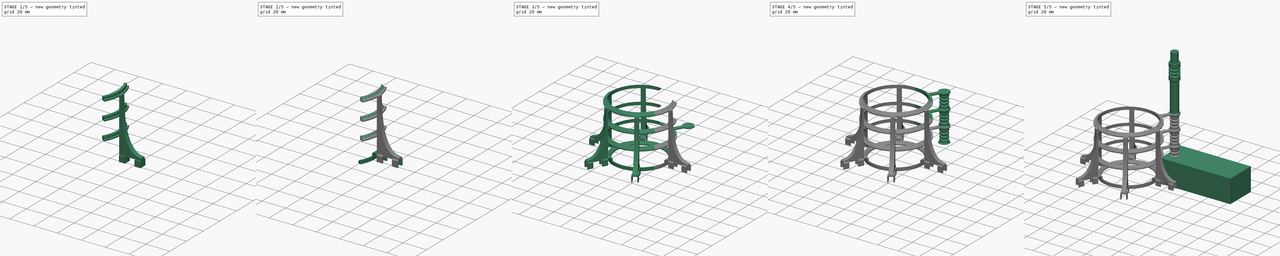
[diagram: build sequence overview — one tinted view per stage of 5, left to right]
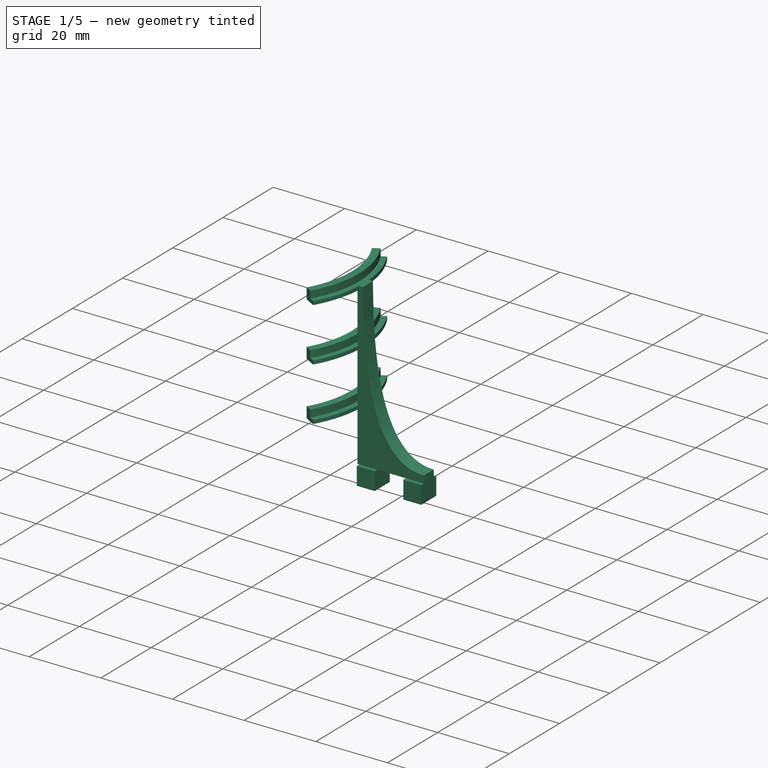
[diagram: stage 1 of 5 — iso view after this stage's code; geometry added in this stage tinted green]
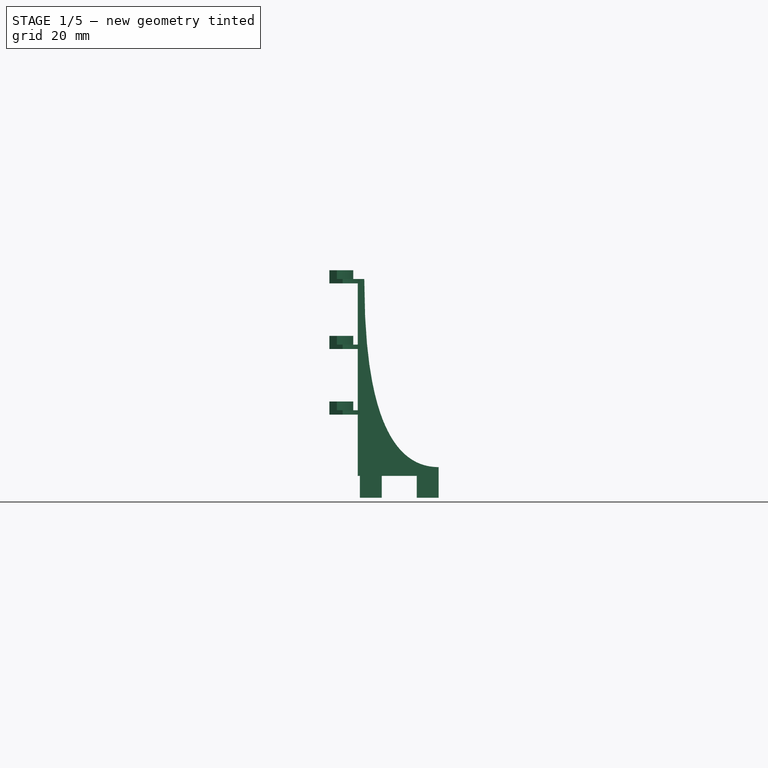
[diagram: stage 1 of 5 — front view after this stage's code; geometry added in this stage tinted green]
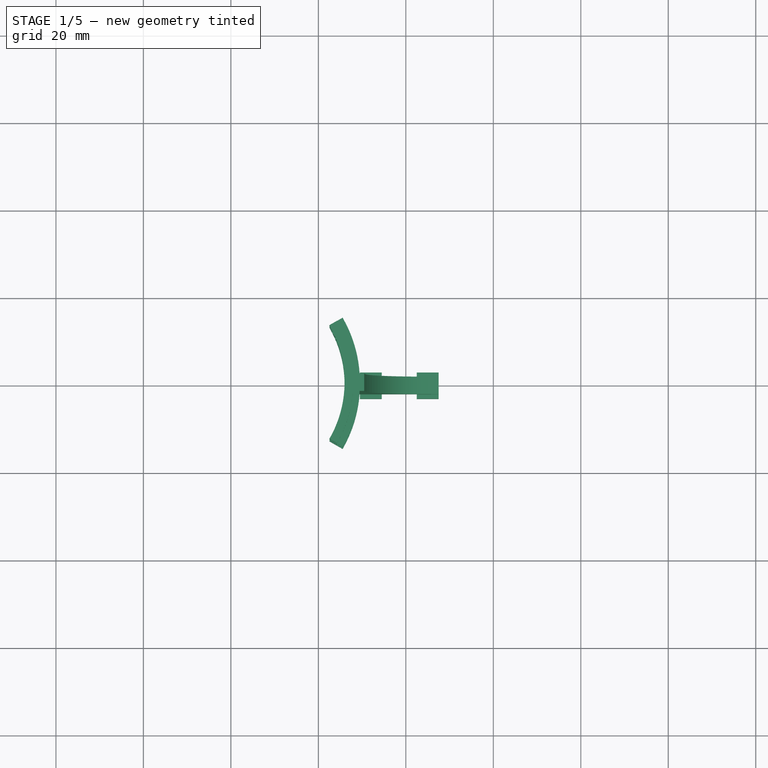
[diagram: stage 1 of 5 — top view after this stage's code; geometry added in this stage tinted green]
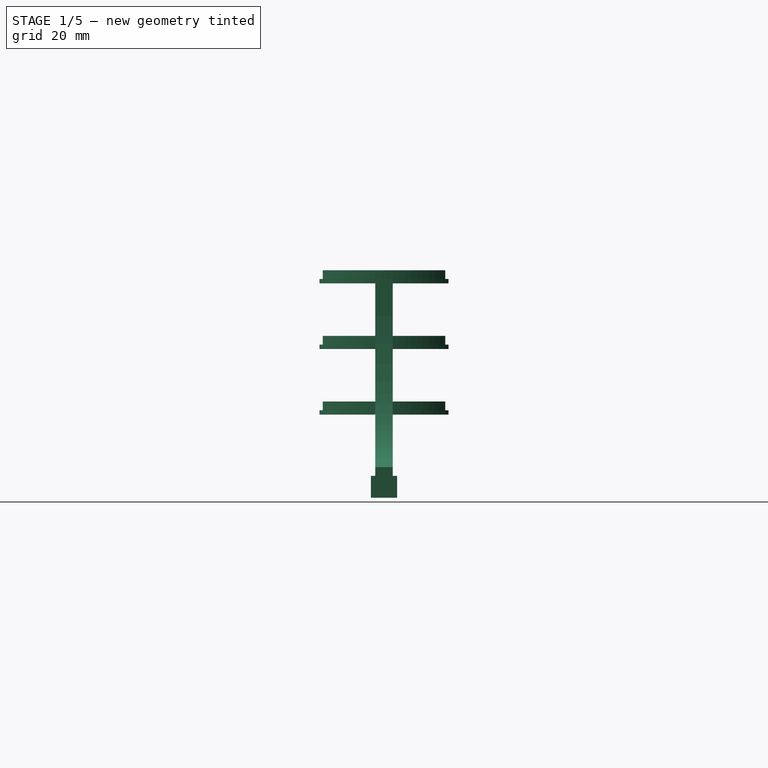
[diagram: stage 1 of 5 — right view after this stage's code; geometry added in this stage tinted green]
FCSTD DOCUMENT  (FreeCAD 0.20R29603 (Git))
Label: PegasusModifier2_Array
License: All rights reserved
LicenseURL: http://en.wikipedia.org/wiki/All_rights_reserved
objects: Sketcher::SketchObject×27, PartDesign::Pad×24, PartDesign::Chamfer×7, PartDesign::Fillet×5, PartDesign::Body×4, PartDesign::Revolution×2, PartDesign::Pocket×1, PartDesign::PolarPattern×1, PartDesign::Boolean×1, PartDesign::LinearPattern×1
note: 112 computed .brp shape members not serialized (recipe doc carries the construction recipe); baked Part::Feature solids carry a one-line shape summary decoded from their .brp

FEATURE [Sketcher::SketchObject] Sketch
  FullyConstrained = true
  MapMode = 5
  Placement = pos=(0,0,0) rot=(1,0,0;1.5708rad)
  Support = -> [XZ_Plane]
  sketch-geometry (10):
    g0: Circle CenterX=30.5 CenterY=45 CenterZ=0 NormalX=0 NormalY=0 NormalZ=1 AngleXU=0 Radius=1
    g1: Circle CenterX=30.5 CenterY=2 CenterZ=0 NormalX=0 NormalY=0 NormalZ=1 AngleXU=0 Radius=1
    g2: Circle CenterX=47.5 CenterY=2 CenterZ=0 NormalX=0 NormalY=0 NormalZ=1 AngleXU=0 Radius=1
    g3: BSplineCurve PolesCount=3 KnotsCount=2 Degree=2 IsPeriodic=0
    g4: GeomPoint X=30.5 Y=45 Z=0
    g5: GeomPoint X=47.5 Y=2 Z=0
    g6: LineSegment StartX=30.5 StartY=45 StartZ=0 EndX=29 EndY=45 EndZ=0
    g7: LineSegment StartX=29 StartY=45 StartZ=0 EndX=29 EndY=0 EndZ=0
    g8: LineSegment StartX=29 StartY=0 StartZ=0 EndX=47.5 EndY=0 EndZ=0
    g9: LineSegment StartX=47.5 StartY=0 StartZ=0 EndX=47.5 EndY=2 EndZ=0
  constraints (25):
    c: Weight(g0) = 1
    c: Equal(g0,g1)
    c: Equal(g0,g2)
    c: InternalAlignment(g0,g3)
    c: InternalAlignment(g1,g3)
    c: InternalAlignment(g2,g3)
    c: InternalAlignment(g4,g3)
    c: InternalAlignment(g5,g3)
    c: Horizontal(g6)
    c: Coincident(g6,g3)
    c: Coincident(g6,g7)
    c: PointOnObject(g7,g-1)
    c: Vertical(g7)
    c: Coincident(g7,g8)
    c: Horizontal(g8)
    c: Coincident(g8,g9)
    c: Vertical(g9)
    c: Coincident(g3,g9)
    c: Horizontal(g3,g1)
    c: DistanceY(g9,g9) = 2
    c: DistanceX(g8,g8) = 18.5
    c: DistanceX(g6,g6) = 1.5
    c: DistanceY(g7,g7) = 45
    c: Vertical(g1,g3)
    c: DistanceX(g-1,g7) = 29
FEATURE [PartDesign::Pad] Pad
  Direction = (0,-1,-2e-16)
  Length = 4
  Length2 = 10
  Midplane = true
  Placement = pos=(0,0,0) rot=(1,0,0;1.5708rad)
  Profile = -> Sketch
  ReferenceAxis = -> Sketch [N_Axis]
  Type = 0
FEATURE [Sketcher::SketchObject] Sketch001  label="Circle"
  FullyConstrained = true
  MapMode = 5
  Placement = pos=(0,1e-14,45) rot=(0,0,1;3.14159rad)
  Support = -> [Pad]
  sketch-geometry (6):
    g0: ArcOfCircle CenterX=0 CenterY=0 CenterZ=0 NormalX=0 NormalY=0 NormalZ=1 AngleXU=0 Radius=26 StartAngle=2.61799 EndAngle=3.66519
    g1: ArcOfCircle CenterX=0 CenterY=0 CenterZ=0 NormalX=0 NormalY=0 NormalZ=1 AngleXU=0 Radius=29.5 StartAngle=2.61799 EndAngle=3.66519
    g2: LineSegment StartX=0 StartY=0 StartZ=0 EndX=-25.5477 EndY=14.75 EndZ=0
    g3: LineSegment StartX=0 StartY=0 StartZ=0 EndX=-25.5477 EndY=-14.75 EndZ=0
    g4: LineSegment StartX=-25.5477 StartY=14.75 StartZ=0 EndX=-22.5167 EndY=13 EndZ=0
    g5: LineSegment StartX=-22.5167 StartY=-13 StartZ=0 EndX=-25.5477 EndY=-14.75 EndZ=0
  constraints (16):
    c: Coincident(g0,g-1)
    c: Coincident(g1,g0)
    c: Diameter(g1) = 59
    c: Diameter(g0) = 52
    c: Coincident(g2,g0)
    c: Coincident(g3,g0)
    c: Angle(g2) = 2.61799
    c: Angle(g3,g-1) = 2.61799
    c: Coincident(g1,g3)
    c: Coincident(g1,g2)
    c: PointOnObject(g0,g3)
    c: PointOnObject(g0,g2)
    c: Coincident(g1,g4)
    c: Coincident(g0,g4)
    c: Coincident(g5,g0)
    c: Coincident(g5,g1)
FEATURE [PartDesign::Pad] Pad001
  BaseFeature = -> Pad
  Direction = (0,-2e-16,1)
  Length = 1
  Length2 = 10
  Placement = pos=(0,0,0) rot=(1,0,0;1.5708rad)
  Profile = -> Sketch001
  ReferenceAxis = -> Sketch001 [N_Axis]
  Reversed = true
  Type = 0
FEATURE [Sketcher::SketchObject] Sketch004  label="CircleBorder"
  FullyConstrained = true
  MapMode = 5
  Placement = pos=(0,1e-14,45) rot=(0,0,1;3.14159rad)
  Support = -> [Pad001]
  sketch-geometry (6):
    g0: ArcOfCircle CenterX=0 CenterY=0 CenterZ=0 NormalX=0 NormalY=0 NormalZ=1 AngleXU=0 Radius=26 StartAngle=2.61799 EndAngle=3.66519
    g1: ArcOfCircle CenterX=0 CenterY=0 CenterZ=0 NormalX=0 NormalY=0 NormalZ=1 AngleXU=0 Radius=28 StartAngle=2.61799 EndAngle=3.66519
    g2: LineSegment StartX=0 StartY=0 StartZ=0 EndX=-24.2487 EndY=14 EndZ=0
    g3: LineSegment StartX=0 StartY=0 StartZ=0 EndX=-24.2487 EndY=-14 EndZ=0
    g4: LineSegment StartX=-24.2487 StartY=14 StartZ=0 EndX=-22.5167 EndY=13 EndZ=0
    g5: LineSegment StartX=-22.5167 StartY=-13 StartZ=0 EndX=-24.2487 EndY=-14 EndZ=0
  constraints (16):
    c: Coincident(g0,g-1)
    c: Coincident(g1,g0)
    c: Diameter(g1) = 56
    c: Diameter(g0) = 52
    c: Coincident(g2,g0)
    c: Coincident(g3,g0)
    c: Angle(g2) = 2.61799
    c: Angle(g3,g-1) = 2.61799
    c: Coincident(g1,g3)
    c: Coincident(g1,g2)
    c: PointOnObject(g0,g3)
    c: PointOnObject(g0,g2)
    c: Coincident(g1,g4)
    c: Coincident(g0,g4)
    c: Coincident(g5,g0)
    c: Coincident(g5,g1)
FEATURE [PartDesign::Pad] Pad002
  BaseFeature = -> Pad001
  Direction = (0,0,1)
  Length = 2
  Length2 = 10
  Placement = pos=(0,0,0) rot=(1,0,0;1.5708rad)
  Profile = -> Sketch004
  ReferenceAxis = -> Sketch004 [N_Axis]
  Type = 0
FEATURE [Sketcher::SketchObject] Sketch005  label="Circle001"
  AttachmentOffset = pos=(0,0,-15) rot=(0,0,1;0rad)
  FullyConstrained = true
  MapMode = 5
  Placement = pos=(0,6.7e-15,30) rot=(0,0,1;3.14159rad)
  Support = -> [Pad]
  sketch-geometry (6):
    g0: ArcOfCircle CenterX=0 CenterY=0 CenterZ=0 NormalX=0 NormalY=0 NormalZ=1 AngleXU=0 Radius=26 StartAngle=2.61799 EndAngle=3.66519
    g1: ArcOfCircle CenterX=0 CenterY=0 CenterZ=0 NormalX=0 NormalY=0 NormalZ=1 AngleXU=0 Radius=29.5 StartAngle=2.61799 EndAngle=3.66519
    g2: LineSegment StartX=0 StartY=0 StartZ=0 EndX=-25.5477 EndY=14.75 EndZ=0
    g3: LineSegment StartX=0 StartY=0 StartZ=0 EndX=-25.5477 EndY=-14.75 EndZ=0
    g4: LineSegment StartX=-25.5477 StartY=14.75 StartZ=0 EndX=-22.5167 EndY=13 EndZ=0
    g5: LineSegment StartX=-22.5167 StartY=-13 StartZ=0 EndX=-25.5477 EndY=-14.75 EndZ=0
  constraints (16):
    c: Coincident(g0,g-1)
    c: Coincident(g1,g0)
    c: Diameter(g1) = 59
    c: Diameter(g0) = 52
    c: Coincident(g2,g0)
    c: Coincident(g3,g0)
    c: Angle(g2) = 2.61799
    c: Angle(g3,g-1) = 2.61799
    c: Coincident(g1,g3)
    c: Coincident(g1,g2)
    c: PointOnObject(g0,g3)
    c: PointOnObject(g0,g2)
    c: Coincident(g1,g4)
    c: Coincident(g0,g4)
    c: Coincident(g5,g0)
    c: Coincident(g5,g1)
FEATURE [Sketcher::SketchObject] Sketch006  label="Circle002"
  AttachmentOffset = pos=(0,0,-30) rot=(0,0,1;0rad)
  FullyConstrained = true
  MapMode = 5
  Placement = pos=(0,3.3e-15,15) rot=(0,0,1;3.14159rad)
  Support = -> [Pad]
  sketch-geometry (6):
    g0: ArcOfCircle CenterX=0 CenterY=0 CenterZ=0 NormalX=0 NormalY=0 NormalZ=1 AngleXU=0 Radius=26 StartAngle=2.61799 EndAngle=3.66519
    g1: ArcOfCircle CenterX=0 CenterY=0 CenterZ=0 NormalX=0 NormalY=0 NormalZ=1 AngleXU=0 Radius=29.5 StartAngle=2.61799 EndAngle=3.66519
    g2: LineSegment StartX=0 StartY=0 StartZ=0 EndX=-25.5477 EndY=14.75 EndZ=0
    g3: LineSegment StartX=0 StartY=0 StartZ=0 EndX=-25.5477 EndY=-14.75 EndZ=0
    g4: LineSegment StartX=-25.5477 StartY=14.75 StartZ=0 EndX=-22.5167 EndY=13 EndZ=0
    g5: LineSegment StartX=-22.5167 StartY=-13 StartZ=0 EndX=-25.5477 EndY=-14.75 EndZ=0
  constraints (16):
    c: Coincident(g0,g-1)
    c: Coincident(g1,g0)
    c: Diameter(g1) = 59
    c: Diameter(g0) = 52
    c: Coincident(g2,g0)
    c: Coincident(g3,g0)
    c: Angle(g2) = 2.61799
    c: Angle(g3,g-1) = 2.61799
    c: Coincident(g1,g3)
    c: Coincident(g1,g2)
    c: PointOnObject(g0,g3)
    c: PointOnObject(g0,g2)
    c: Coincident(g1,g4)
    c: Coincident(g0,g4)
    c: Coincident(g5,g0)
    c: Coincident(g5,g1)
FEATURE [PartDesign::Pad] Pad003
  BaseFeature = -> Pad002
  Direction = (0,-2e-16,1)
  Length = 1
  Length2 = 10
  Placement = pos=(0,0,0) rot=(1,0,0;1.5708rad)
  Profile = -> Sketch005
  ReferenceAxis = -> Sketch005 [N_Axis]
  Reversed = true
  Type = 0
FEATURE [PartDesign::Pad] Pad004
  BaseFeature = -> Pad003
  Direction = (0,-2e-16,1)
  Length = 1
  Length2 = 10
  Placement = pos=(0,0,0) rot=(1,0,0;1.5708rad)
  Profile = -> Sketch006
  ReferenceAxis = -> Sketch006 [N_Axis]
  Reversed = true
  Type = 0
FEATURE [Sketcher::SketchObject] Sketch007  label="CircleBorder001"
  FullyConstrained = true
  MapMode = 5
  Placement = pos=(0,1e-16,30) rot=(0,0,1;3.14159rad)
  Support = -> [Pad004]
  sketch-geometry (6):
    g0: ArcOfCircle CenterX=0 CenterY=0 CenterZ=0 NormalX=0 NormalY=0 NormalZ=1 AngleXU=0 Radius=26 StartAngle=2.61799 EndAngle=3.66519
    g1: ArcOfCircle CenterX=0 CenterY=0 CenterZ=0 NormalX=0 NormalY=0 NormalZ=1 AngleXU=0 Radius=28 StartAngle=2.61799 EndAngle=3.66519
    g2: LineSegment StartX=0 StartY=0 StartZ=0 EndX=-24.2487 EndY=14 EndZ=0
    g3: LineSegment StartX=0 StartY=0 StartZ=0 EndX=-24.2487 EndY=-14 EndZ=0
    g4: LineSegment StartX=-24.2487 StartY=14 StartZ=0 EndX=-22.5167 EndY=13 EndZ=0
    g5: LineSegment StartX=-22.5167 StartY=-13 StartZ=0 EndX=-24.2487 EndY=-14 EndZ=0
  constraints (16):
    c: Coincident(g0,g-1)
    c: Coincident(g1,g0)
    c: Diameter(g1) = 56
    c: Diameter(g0) = 52
    c: Coincident(g2,g0)
    c: Coincident(g3,g0)
    c: Angle(g2) = 2.61799
    c: Angle(g3,g-1) = 2.61799
    c: Coincident(g1,g3)
    c: Coincident(g1,g2)
    c: PointOnObject(g0,g3)
    c: PointOnObject(g0,g2)
    c: Coincident(g1,g4)
    c: Coincident(g0,g4)
    c: Coincident(g5,g0)
    c: Coincident(g5,g1)
FEATURE [PartDesign::Pad] Pad005
  BaseFeature = -> Pad004
  Direction = (0,-2e-16,1)
  Length = 2
  Length2 = 10
  Placement = pos=(0,0,0) rot=(1,0,0;1.5708rad)
  Profile = -> Sketch007
  ReferenceAxis = -> Sketch007 [N_Axis]
  Type = 0
FEATURE [Sketcher::SketchObject] Sketch008  label="CircleBorder002"
  FullyConstrained = true
  MapMode = 5
  Placement = pos=(0,-7e-16,15) rot=(0,0,1;3.14159rad)
  Support = -> [Pad005]
  sketch-geometry (6):
    g0: ArcOfCircle CenterX=0 CenterY=0 CenterZ=0 NormalX=0 NormalY=0 NormalZ=1 AngleXU=0 Radius=26 StartAngle=2.61799 EndAngle=3.66519
    g1: ArcOfCircle CenterX=0 CenterY=0 CenterZ=0 NormalX=0 NormalY=0 NormalZ=1 AngleXU=0 Radius=28 StartAngle=2.61799 EndAngle=3.66519
    g2: LineSegment StartX=0 StartY=0 StartZ=0 EndX=-24.2487 EndY=14 EndZ=0
    g3: LineSegment StartX=0 StartY=0 StartZ=0 EndX=-24.2487 EndY=-14 EndZ=0
    g4: LineSegment StartX=-24.2487 StartY=14 StartZ=0 EndX=-22.5167 EndY=13 EndZ=0
    g5: LineSegment StartX=-22.5167 StartY=-13 StartZ=0 EndX=-24.2487 EndY=-14 EndZ=0
  constraints (16):
    c: Coincident(g0,g-1)
    c: Coincident(g1,g0)
    c: Diameter(g1) = 56
    c: Diameter(g0) = 52
    c: Coincident(g2,g0)
    c: Coincident(g3,g0)
    c: Angle(g2) = 2.61799
    c: Angle(g3,g-1) = 2.61799
    c: Coincident(g1,g3)
    c: Coincident(g1,g2)
    c: PointOnObject(g0,g3)
    c: PointOnObject(g0,g2)
    c: Coincident(g1,g4)
    c: Coincident(g0,g4)
    c: Coincident(g5,g0)
    c: Coincident(g5,g1)
FEATURE [PartDesign::Pad] Pad006
  BaseFeature = -> Pad005
  Direction = (0,-3e-16,1)
  Length = 2
  Length2 = 10
  Placement = pos=(0,0,0) rot=(1,0,0;1.5708rad)
  Profile = -> Sketch008
  ReferenceAxis = -> Sketch008 [N_Axis]
  Type = 0
FEATURE [Sketcher::SketchObject] Sketch003
  FullyConstrained = true
  MapMode = 5
  Placement = pos=(0,0,0) rot=(1,0,0;3.14159rad)
  Support = -> [Pad006]
  sketch-geometry (8):
    g0: LineSegment StartX=29.5 StartY=3 StartZ=0 EndX=34.5 EndY=3 EndZ=0
    g1: LineSegment StartX=47.5 StartY=3 StartZ=0 EndX=47.5 EndY=-3 EndZ=0
    g2: LineSegment StartX=47.5 StartY=-3 StartZ=0 EndX=42.5 EndY=-3 EndZ=0
    g3: LineSegment StartX=29.5 StartY=-3 StartZ=0 EndX=29.5 EndY=3 EndZ=0
    g4: LineSegment StartX=42.5 StartY=3 StartZ=0 EndX=42.5 EndY=-3 EndZ=0
    g5: LineSegment StartX=34.5 StartY=-3 StartZ=0 EndX=34.5 EndY=3 EndZ=0
    g6: LineSegment StartX=42.5 StartY=3 StartZ=0 EndX=47.5 EndY=3 EndZ=0
    g7: LineSegment StartX=34.5 StartY=-3 StartZ=0 EndX=29.5 EndY=-3 EndZ=0
  constraints (22):
    c: Coincident(g6,g1)
    c: Coincident(g1,g2)
    c: Coincident(g7,g3)
    c: Coincident(g3,g0)
    c: Horizontal(g0)
    c: Horizontal(g2)
    c: Vertical(g3)
    c: DistanceX(g-1,g0) = 29.5
    c: DistanceX(g0,g6) = 18
    c: DistanceY(g1,g1) = 6
    c: Symmetric(g6,g1,g-1)
    c: Vertical(g4)
    c: Coincident(g2,g4)
    c: DistanceX(g0,g0) = 5
    c: Coincident(g5,g0)
    c: Coincident(g7,g5)
    c: Equal(g6,g0)
    c: Coincident(g4,g6)
    c: Equal(g5,g1)
    c: Symmetric(g0,g5,g-1)
    c: Horizontal(g7)
    c: Horizontal(g6)
FEATURE [PartDesign::Pad] Pad007
  BaseFeature = -> Pad006
  Direction = (0,2e-16,-1)
  Length = 5
  Length2 = 10
  Placement = pos=(0,0,0) rot=(1,0,0;1.5708rad)
  Profile = -> Sketch003
  ReferenceAxis = -> Sketch003 [N_Axis]
  Type = 0
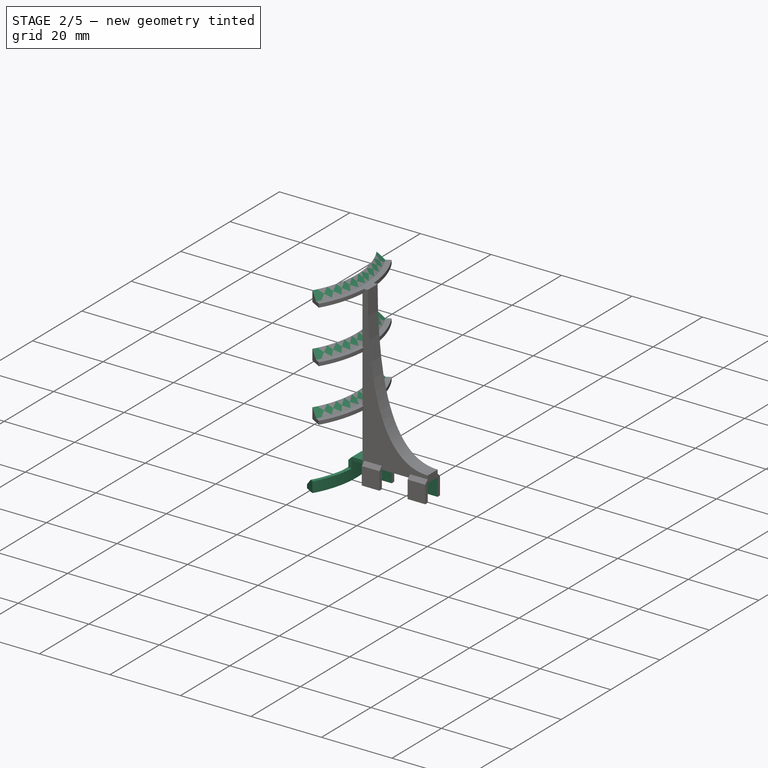
[diagram: stage 2 of 5 — iso view after this stage's code; geometry added in this stage tinted green]
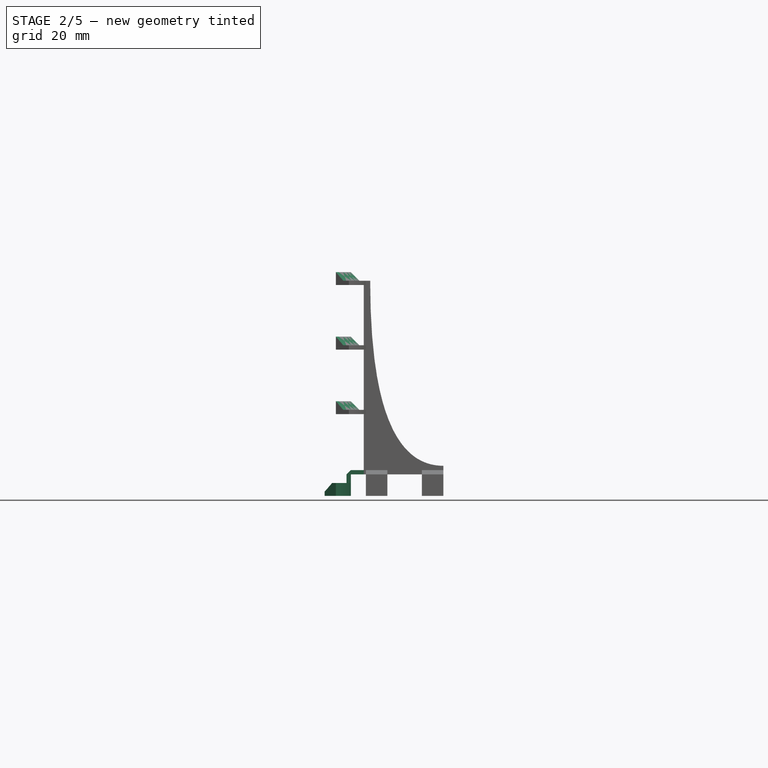
[diagram: stage 2 of 5 — front view after this stage's code; geometry added in this stage tinted green]
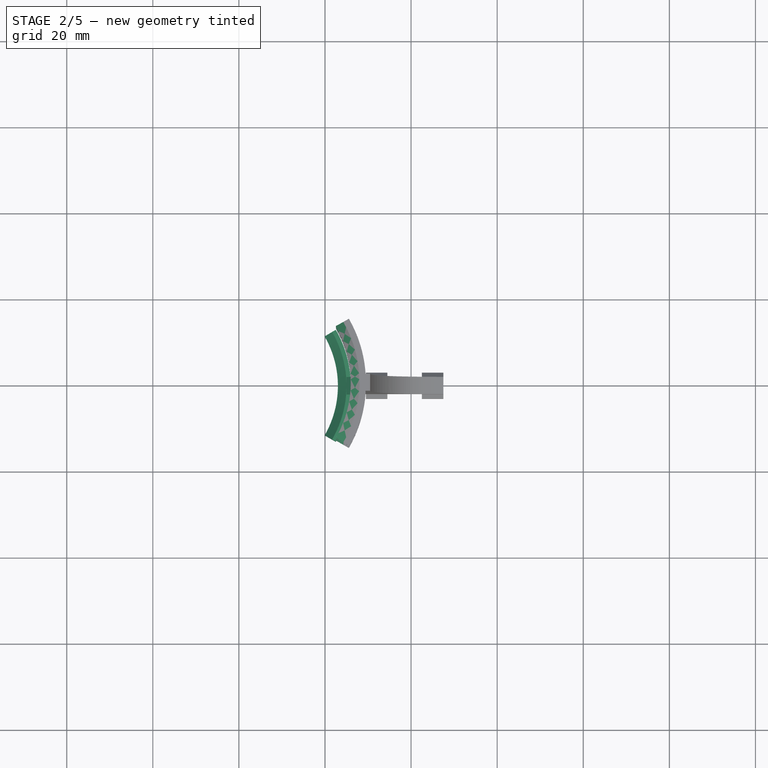
[diagram: stage 2 of 5 — top view after this stage's code; geometry added in this stage tinted green]
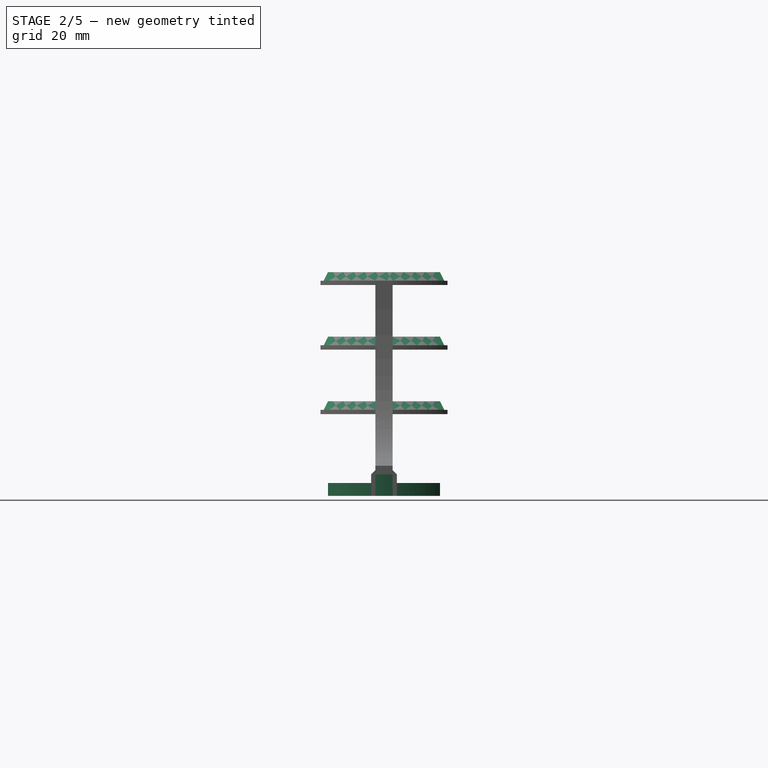
[diagram: stage 2 of 5 — right view after this stage's code; geometry added in this stage tinted green]
FEATURE [Sketcher::SketchObject] Sketch009
  FullyConstrained = true
  MapMode = 5
  Placement = pos=(0,0,-5) rot=(1,0,0;3.14159rad)
  Support = -> [Pad007]
  sketch-geometry (4):
    g0: LineSegment StartX=29.5 StartY=2 StartZ=0 EndX=47.5 EndY=2 EndZ=0
    g1: LineSegment StartX=47.5 StartY=2 StartZ=0 EndX=47.5 EndY=-2 EndZ=0
    g2: LineSegment StartX=47.5 StartY=-2 StartZ=0 EndX=29.5 EndY=-2 EndZ=0
    g3: LineSegment StartX=29.5 StartY=-2 StartZ=0 EndX=29.5 EndY=2 EndZ=0
  constraints (11):
    c: Coincident(g0,g1)
    c: Coincident(g1,g2)
    c: Coincident(g2,g3)
    c: Coincident(g3,g0)
    c: Horizontal(g0)
    c: Horizontal(g2)
    c: Vertical(g3)
    c: DistanceX(g-1,g0) = 29.5
    c: DistanceX(g0,g0) = 18
    c: DistanceY(g1,g1) = 4
    c: Symmetric(g0,g1,g-1)
FEATURE [PartDesign::Chamfer] Chamfer
  Angle = 45
  Base = -> Pad007 [Edge38,Edge40,Edge25,Edge23]
  BaseFeature = -> Pad007
  ChamferType = 0
  FlipDirection = false
  Placement = pos=(0,0,0) rot=(1,0,0;1.5708rad)
  Size = 0.99
  Size2 = 1
  SupportTransform = false
  UseAllEdges = false
FEATURE [PartDesign::Pocket] Pocket
  BaseFeature = -> Chamfer
  Direction = (0,-2e-16,1)
  Length = 5
  Length2 = 5
  Placement = pos=(0,0,0) rot=(1,0,0;1.5708rad)
  Profile = -> Sketch009
  ReferenceAxis = -> Sketch009 [N_Axis]
  Type = 0
FEATURE [Sketcher::SketchObject] Sketch010
  FullyConstrained = true
  MapMode = 5
  Placement = pos=(29,0,0) rot=(0.707107,0,-0.707107;3.14159rad)
  Support = -> [Pocket]
  sketch-geometry (4):
    g0: LineSegment StartX=0 StartY=2 StartZ=0 EndX=-1 EndY=2 EndZ=0
    g1: LineSegment StartX=-1 StartY=2 StartZ=0 EndX=-1 EndY=-2 EndZ=0
    g2: LineSegment StartX=-1 StartY=-2 StartZ=0 EndX=0 EndY=-2 EndZ=0
    g3: LineSegment StartX=0 StartY=-2 StartZ=0 EndX=0 EndY=2 EndZ=0
  constraints (11):
    c: Coincident(g0,g1)
    c: Coincident(g1,g2)
    c: Coincident(g2,g3)
    c: Coincident(g3,g0)
    c: Horizontal(g0)
    c: Horizontal(g2)
    c: Vertical(g1)
    c: PointOnObject(g0,g-2)
    c: DistanceX(g0,g0) = 1
    c: DistanceY(g1,g1) = 4
    c: Symmetric(g0,g2,g-1)
FEATURE [PartDesign::Pad] Pad008
  BaseFeature = -> Pocket
  Direction = (-1,0,-2e-16)
  Length = 4
  Length2 = 10
  Placement = pos=(0,0,0) rot=(1,0,0;1.5708rad)
  Profile = -> Sketch010
  ReferenceAxis = -> Sketch010 [N_Axis]
  Type = 0
FEATURE [Sketcher::SketchObject] Sketch011
  FullyConstrained = true
  MapMode = 5
  Placement = pos=(0,0,-6.4e-15) rot=(1,0,0;3.14159rad)
  Support = -> [Pad008]
  sketch-geometry (4):
    g0: LineSegment StartX=25 StartY=-2 StartZ=0 EndX=25 EndY=2 EndZ=0
    g1: ArcOfCircle CenterX=0 CenterY=0 CenterZ=0 NormalX=0 NormalY=0 NormalZ=1 AngleXU=0 Radius=26 StartAngle=6.20619 EndAngle=6.36018
    g2: LineSegment StartX=25 StartY=2 StartZ=0 EndX=25.923 EndY=2 EndZ=0
    g3: LineSegment StartX=25 StartY=-2 StartZ=0 EndX=25.923 EndY=-2 EndZ=0
  constraints (11):
    c: DistanceX(g-1,g0) = 25
    c: Symmetric(g0,g0,g-1)
    c: Coincident(g1,g-1)
    c: Diameter(g1) = 52
    c: Coincident(g2,g0)
    c: Horizontal(g2)
    c: Coincident(g3,g0)
    c: DistanceY(g0,g0) = 4
    c: Horizontal(g3)
    c: Coincident(g1,g2)
    c: Coincident(g1,g3)
FEATURE [PartDesign::Pad] Pad009
  BaseFeature = -> Pad008
  Direction = (2e-16,2e-16,-1)
  Length = 5
  Length2 = 10
  Placement = pos=(0,0,0) rot=(1,0,0;1.5708rad)
  Profile = -> Sketch011
  ReferenceAxis = -> Sketch011 [N_Axis]
  Type = 0
FEATURE [Sketcher::SketchObject] Sketch012
  AttachmentOffset = pos=(0,0,-5) rot=(0,0,1;0rad)
  FullyConstrained = true
  MapMode = 5
  Placement = pos=(0,0,-5) rot=(0,0,1;0rad)
  Support = -> [XY_Plane]
  sketch-geometry (6):
    g0: ArcOfCircle CenterX=0 CenterY=0 CenterZ=0 NormalX=0 NormalY=0 NormalZ=1 AngleXU=0 Radius=26 StartAngle=5.75959 EndAngle=6.80678
    g1: ArcOfCircle CenterX=0 CenterY=0 CenterZ=0 NormalX=0 NormalY=0 NormalZ=1 AngleXU=0 Radius=23 StartAngle=5.75959 EndAngle=6.80678
    g2: LineSegment StartX=0 StartY=0 StartZ=0 EndX=22.5167 EndY=13 EndZ=0
    g3: LineSegment StartX=0 StartY=0 StartZ=0 EndX=22.5167 EndY=-13 EndZ=0
    g4: LineSegment StartX=19.9186 StartY=11.5 StartZ=0 EndX=22.5167 EndY=13 EndZ=0
    g5: LineSegment StartX=19.9186 StartY=-11.5 StartZ=0 EndX=22.5167 EndY=-13 EndZ=0
  constraints (16):
    c: Coincident(g0,g-1)
    c: Coincident(g1,g0)
    c: Diameter(g0) = 52
    c: Diameter(g1) = 46
    c: Coincident(g2,g0)
    c: Coincident(g3,g0)
    c: Angle(g-1,g2) = 0.523599
    c: Angle(g3,g-1) = 0.523599
    c: Coincident(g0,g2)
    c: Coincident(g0,g3)
    c: PointOnObject(g1,g2)
    c: PointOnObject(g1,g3)
    c: Coincident(g4,g1)
    c: Coincident(g0,g4)
    c: Coincident(g5,g0)
    c: Coincident(g5,g1)
FEATURE [PartDesign::Pad] Pad010
  BaseFeature = -> Pad009
  Direction = (0,0,1)
  Length = 1
  Length2 = 10
  Placement = pos=(0,0,0) rot=(1,0,0;1.5708rad)
  Profile = -> Sketch012
  ReferenceAxis = -> Sketch012 [N_Axis]
  Type = 0
FEATURE [Sketcher::SketchObject] Sketch013
  FullyConstrained = true
  MapMode = 5
  Placement = pos=(0,-9e-16,-4) rot=(0,0,1;3.14159rad)
  Support = -> [Pad010]
  sketch-geometry (6):
    g0: ArcOfCircle CenterX=0 CenterY=0 CenterZ=0 NormalX=0 NormalY=0 NormalZ=1 AngleXU=0 Radius=26 StartAngle=2.61799 EndAngle=3.66519
    g1: ArcOfCircle CenterX=0 CenterY=0 CenterZ=0 NormalX=0 NormalY=0 NormalZ=1 AngleXU=0 Radius=25 StartAngle=2.61799 EndAngle=3.66519
    g2: LineSegment StartX=0 StartY=0 StartZ=0 EndX=-22.5167 EndY=13 EndZ=0
    g3: LineSegment StartX=0 StartY=0 StartZ=0 EndX=-22.5167 EndY=-13 EndZ=0
    g4: LineSegment StartX=-22.5167 StartY=13 StartZ=0 EndX=-21.6506 EndY=12.5 EndZ=0
    g5: LineSegment StartX=-22.5167 StartY=-13 StartZ=0 EndX=-21.6506 EndY=-12.5 EndZ=0
  constraints (16):
    c: Coincident(g0,g-1)
    c: Coincident(g1,g0)
    c: Coincident(g2,g0)
    c: Coincident(g3,g0)
    c: Angle(g-1,g2) = 2.61799
    c: Angle(g3,g-1) = 2.61799
    c: Diameter(g0) = 52
    c: Diameter(g1) = 50
    c: PointOnObject(g1,g3)
    c: PointOnObject(g1,g2)
    c: Coincident(g0,g3)
    c: Coincident(g0,g2)
    c: Coincident(g0,g4)
    c: Coincident(g1,g4)
    c: Coincident(g1,g5)
    c: Coincident(g5,g0)
FEATURE [PartDesign::Pad] Pad011
  BaseFeature = -> Pad010
  Direction = (0,0,1)
  Length = 2
  Length2 = 10
  Placement = pos=(0,0,0) rot=(1,0,0;1.5708rad)
  Profile = -> Sketch013
  ReferenceAxis = -> Sketch013 [N_Axis]
  Type = 0
FEATURE [PartDesign::Chamfer] Chamfer001
  Angle = 45
  Base = -> Pad011 [Edge237]
  BaseFeature = -> Pad011
  ChamferType = 0
  FlipDirection = false
  Placement = pos=(0,0,0) rot=(1,0,0;1.5708rad)
  Size = 1.99
  Size2 = 1
  SupportTransform = false
  UseAllEdges = false
FEATURE [PartDesign::Chamfer] Chamfer002
  Angle = 45
  Base = -> Chamfer001 [Edge60]
  BaseFeature = -> Chamfer001
  ChamferType = 0
  FlipDirection = false
  Placement = pos=(0,0,0) rot=(1,0,0;1.5708rad)
  Size = 0.99
  Size2 = 1
  SupportTransform = false
  UseAllEdges = false
FEATURE [PartDesign::Chamfer] Chamfer003
  Angle = 45
  Base = -> Chamfer002 [Edge185,Edge173,Edge221]
  BaseFeature = -> Chamfer002
  ChamferType = 0
  FlipDirection = false
  Placement = pos=(0,0,0) rot=(1,0,0;1.5708rad)
  Size = 1.99
  Size2 = 1
  SupportTransform = false
  UseAllEdges = false
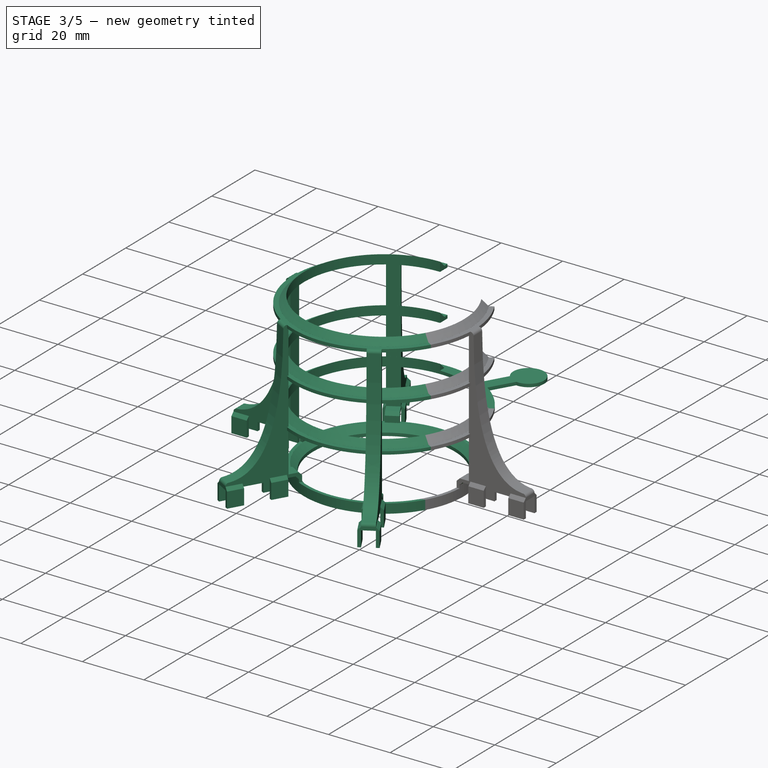
[diagram: stage 3 of 5 — iso view after this stage's code; geometry added in this stage tinted green]
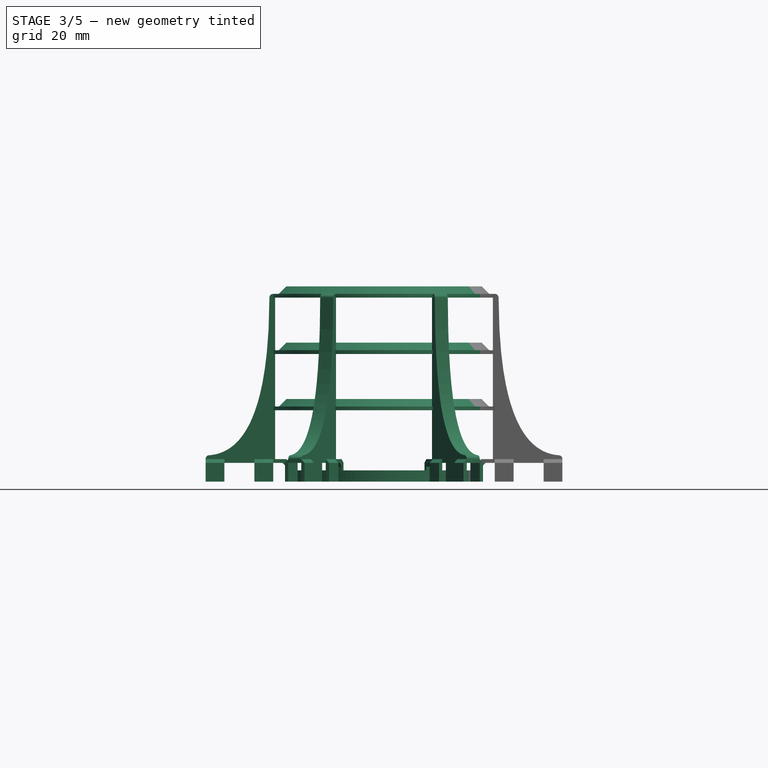
[diagram: stage 3 of 5 — front view after this stage's code; geometry added in this stage tinted green]
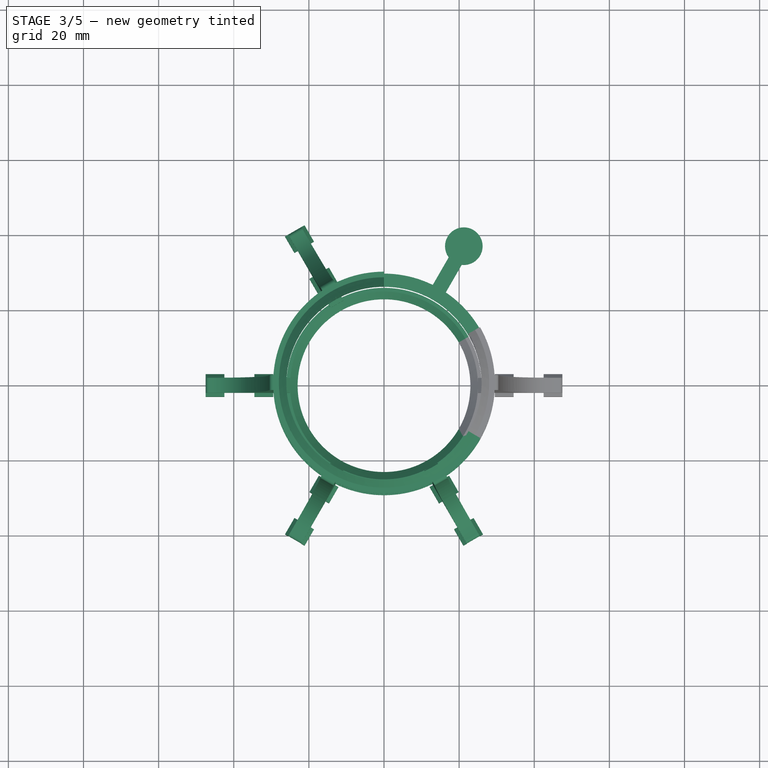
[diagram: stage 3 of 5 — top view after this stage's code; geometry added in this stage tinted green]
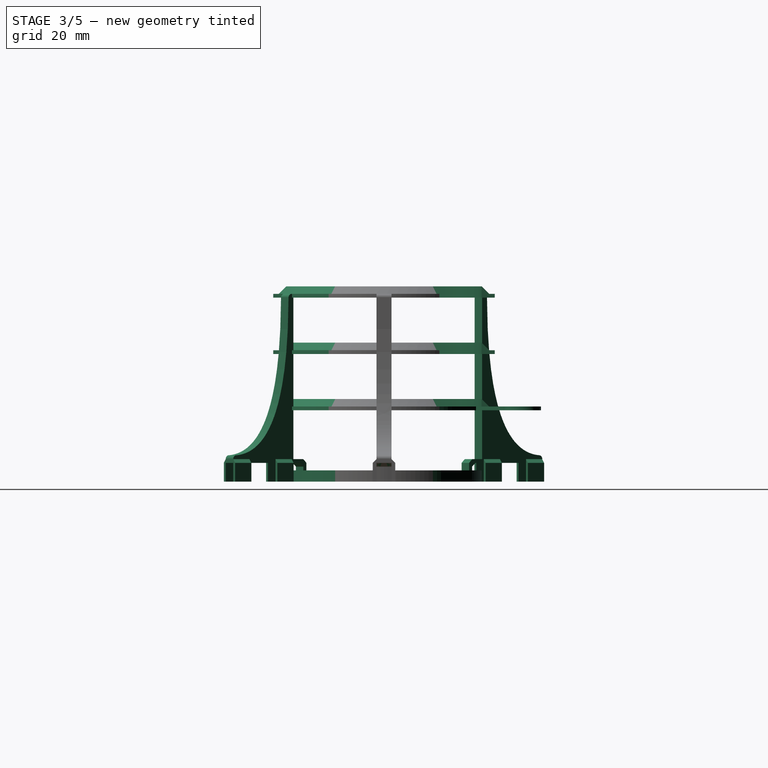
[diagram: stage 3 of 5 — right view after this stage's code; geometry added in this stage tinted green]
FEATURE [PartDesign::Fillet] Fillet
  Base = -> Chamfer003 [Edge77,Edge84]
  BaseFeature = -> Chamfer003
  Placement = pos=(0,0,0) rot=(1,0,0;1.5708rad)
  Radius = 1
  SupportTransform = false
  UseAllEdges = false
FEATURE [PartDesign::Body] Body001
  Group = -> [Sketch014,Pad012]
  Origin = -> Origin001
  Tip = -> Pad012
FEATURE [PartDesign::Chamfer] Chamfer004
  Angle = 45
  Base = -> Fillet [Edge154]
  BaseFeature = -> Fillet
  ChamferType = 0
  FlipDirection = false
  Placement = pos=(0,0,0) rot=(1,0,0;1.5708rad)
  Size = 1
  Size2 = 1
  SupportTransform = false
  UseAllEdges = false
FEATURE [Sketcher::SketchObject] Sketch015
  AttachmentOffset = pos=(0,0,-5) rot=(0,0,1;0rad)
  FullyConstrained = true
  MapMode = 5
  Placement = pos=(0,0,-5) rot=(0,0,1;0rad)
  Support = -> [XY_Plane002]
  sketch-geometry (6):
    g0: ArcOfCircle CenterX=0 CenterY=0 CenterZ=0 NormalX=0 NormalY=0 NormalZ=1 AngleXU=0 Radius=23 StartAngle=0.523599 EndAngle=1.5708
    g1: ArcOfCircle CenterX=0 CenterY=0 CenterZ=0 NormalX=0 NormalY=0 NormalZ=1 AngleXU=0 Radius=26 StartAngle=0.523599 EndAngle=1.5708
    g2: LineSegment StartX=0 StartY=0 StartZ=0 EndX=1.6e-15 EndY=26 EndZ=0
    g3: LineSegment StartX=0 StartY=0 StartZ=0 EndX=22.5167 EndY=13 EndZ=0
    g4: LineSegment StartX=1.4e-15 StartY=23 StartZ=0 EndX=1.6e-15 EndY=26 EndZ=0
    g5: LineSegment StartX=22.5167 StartY=13 StartZ=0 EndX=19.9186 EndY=11.5 EndZ=0
  constraints (16):
    c: Coincident(g0,g-1)
    c: Coincident(g1,g0)
    c: Diameter(g0) = 46
    c: Diameter(g1) = 52
    c: Coincident(g2,g0)
    c: Coincident(g3,g0)
    c: Coincident(g1,g2)
    c: Coincident(g1,g3)
    c: PointOnObject(g0,g2)
    c: PointOnObject(g0,g3)
    c: Coincident(g4,g0)
    c: Coincident(g4,g1)
    c: Coincident(g0,g5)
    c: Coincident(g1,g5)
    c: Angle(g-1,g2) = 1.5708
    c: Angle(g-1,g3) = 0.523599
FEATURE [PartDesign::Pad] Pad013
  Direction = (0,0,1)
  Length = 1
  Length2 = 10
  Profile = -> Sketch015
  ReferenceAxis = -> Sketch015 [N_Axis]
  Type = 0
FEATURE [Sketcher::SketchObject] Sketch016
  AttachmentOffset = pos=(0,0,-4) rot=(0,0,1;0rad)
  FullyConstrained = true
  MapMode = 5
  Placement = pos=(0,0,-4) rot=(0,0,1;0rad)
  Support = -> [XY_Plane002]
  sketch-geometry (6):
    g0: ArcOfCircle CenterX=0 CenterY=0 CenterZ=0 NormalX=0 NormalY=0 NormalZ=1 AngleXU=0 Radius=25 StartAngle=0.523599 EndAngle=1.5708
    g1: ArcOfCircle CenterX=0 CenterY=0 CenterZ=0 NormalX=0 NormalY=0 NormalZ=1 AngleXU=0 Radius=26 StartAngle=0.523599 EndAngle=1.5708
    g2: LineSegment StartX=0 StartY=0 StartZ=0 EndX=2.5245e-12 EndY=26 EndZ=0
    g3: LineSegment StartX=0 StartY=0 StartZ=0 EndX=22.5167 EndY=13 EndZ=0
    g4: LineSegment StartX=2.3115e-12 StartY=25 StartZ=0 EndX=2.5245e-12 EndY=26 EndZ=0
    g5: LineSegment StartX=22.5167 StartY=13 StartZ=0 EndX=21.6506 EndY=12.5 EndZ=0
  constraints (16):
    c: Coincident(g0,g-1)
    c: Coincident(g1,g0)
    c: Diameter(g0) = 50
    c: Diameter(g1) = 52
    c: Coincident(g2,g0)
    c: Coincident(g3,g0)
    c: Coincident(g1,g2)
    c: Coincident(g1,g3)
    c: PointOnObject(g0,g2)
    c: PointOnObject(g0,g3)
    c: Coincident(g4,g0)
    c: Coincident(g4,g1)
    c: Coincident(g0,g5)
    c: Coincident(g1,g5)
    c: Angle(g-1,g2) = 1.5708
    c: Angle(g-1,g3) = 0.523599
FEATURE [PartDesign::Pad] Pad014
  BaseFeature = -> Pad013
  Direction = (0,0,1)
  Length = 2
  Length2 = 10
  Profile = -> Sketch016
  ReferenceAxis = -> Sketch016 [N_Axis]
  Type = 0
FEATURE [PartDesign::Chamfer] Chamfer005
  Angle = 45
  Base = -> Pad014 [Edge17]
  BaseFeature = -> Pad014
  ChamferType = 0
  FlipDirection = false
  Size = 1.99
  Size2 = 1
  SupportTransform = false
  UseAllEdges = false
FEATURE [Sketcher::SketchObject] Sketch023
  AttachmentOffset = pos=(0,0,14) rot=(0,0,1;1.0472rad)
  FullyConstrained = true
  MapMode = 5
  Placement = pos=(0,0,14) rot=(0,0,1;1.0472rad)
  Support = -> [XY_Plane002]
  sketch-geometry (10):
    g0: ArcOfCircle CenterX=0 CenterY=0 CenterZ=0 NormalX=0 NormalY=0 NormalZ=1 AngleXU=0 Radius=26 StartAngle=5.75959 EndAngle=6.80678
    g1: ArcOfCircle CenterX=0 CenterY=0 CenterZ=0 NormalX=0 NormalY=0 NormalZ=1 AngleXU=0 Radius=29.5 StartAngle=5.75959 EndAngle=6.21534
    g2: LineSegment StartX=0 StartY=0 StartZ=0 EndX=25.5477 EndY=14.75 EndZ=0
    g3: LineSegment StartX=0 StartY=0 StartZ=0 EndX=25.5477 EndY=-14.75 EndZ=0
    g4: LineSegment StartX=22.5167 StartY=13 StartZ=0 EndX=25.5477 EndY=14.75 EndZ=0
    g5: LineSegment StartX=22.5167 StartY=-13 StartZ=0 EndX=25.5477 EndY=-14.75 EndZ=0
    g6: LineSegment StartX=37.9174 StartY=2 StartZ=0 EndX=29.4321 EndY=2 EndZ=0
    g7: LineSegment StartX=29.4321 StartY=-2 StartZ=0 EndX=37.9174 EndY=-2 EndZ=0
    g8: ArcOfCircle CenterX=42.5 CenterY=0 CenterZ=0 NormalX=0 NormalY=0 NormalZ=1 AngleXU=0 Radius=5 StartAngle=3.55311 EndAngle=9.01326
    g9: ArcOfCircle CenterX=0 CenterY=0 CenterZ=0 NormalX=0 NormalY=0 NormalZ=1 AngleXU=0 Radius=29.5 StartAngle=0.0678487 EndAngle=0.523599
  constraints (28):
    c: Coincident(g0,g-1)
    c: Coincident(g1,g0)
    c: Coincident(g2,g0)
    c: Coincident(g3,g0)
    c: Coincident(g9,g2)
    c: Coincident(g1,g3)
    c: PointOnObject(g0,g2)
    c: PointOnObject(g0,g3)
    c: Coincident(g4,g0)
    c: Coincident(g9,g4)
    c: Coincident(g0,g5)
    c: Coincident(g5,g1)
    c: Angle(g3,g-1) = 0.523599
    c: Angle(g-1,g2) = 0.523599
    c: Radius(g1) = 29.5
    c: Radius(g0) = 26
    c: Horizontal(g6)
    c: Horizontal(g7)
    c: PointOnObject(g8,g-1)
    c: Diameter(g8) = 10
    c: DistanceX(g0,g8) = 42.5
    c: Coincident(g1,g7)
    c: Coincident(g9,g6)
    c: Coincident(g1,g9)
    c: Coincident(g8,g6)
    c: Coincident(g8,g7)
    c: DistanceY(g1,g6) = 4
    c: Symmetric(g6,g1,g-1)
FEATURE [Sketcher::SketchObject] Sketch024
  AttachmentOffset = pos=(0,0,29) rot=(0,0,1;1.0472rad)
  FullyConstrained = true
  MapMode = 5
  Placement = pos=(0,0,29) rot=(0,0,1;1.0472rad)
  Support = -> [XY_Plane002]
  sketch-geometry (10):
    g0: ArcOfCircle CenterX=0 CenterY=0 CenterZ=0 NormalX=0 NormalY=0 NormalZ=1 AngleXU=0 Radius=26 StartAngle=5.75959 EndAngle=6.80678
    g1: ArcOfCircle CenterX=0 CenterY=0 CenterZ=0 NormalX=0 NormalY=0 NormalZ=1 AngleXU=0 Radius=29.5 StartAngle=5.75959 EndAngle=6.21534
    g2: LineSegment StartX=0 StartY=0 StartZ=0 EndX=25.5477 EndY=14.75 EndZ=0
    g3: LineSegment StartX=0 StartY=0 StartZ=0 EndX=25.5477 EndY=-14.75 EndZ=0
    g4: LineSegment StartX=22.5167 StartY=13 StartZ=0 EndX=25.5477 EndY=14.75 EndZ=0
    g5: LineSegment StartX=22.5167 StartY=-13 StartZ=0 EndX=25.5477 EndY=-14.75 EndZ=0
    g6: LineSegment StartX=37.9174 StartY=2 StartZ=0 EndX=29.4321 EndY=2 EndZ=0
    g7: LineSegment StartX=29.4321 StartY=-2 StartZ=0 EndX=37.9174 EndY=-2 EndZ=0
    g8: ArcOfCircle CenterX=42.5 CenterY=0 CenterZ=0 NormalX=0 NormalY=0 NormalZ=1 AngleXU=0 Radius=5 StartAngle=3.55311 EndAngle=9.01326
    g9: ArcOfCircle CenterX=0 CenterY=0 CenterZ=0 NormalX=0 NormalY=0 NormalZ=1 AngleXU=0 Radius=29.5 StartAngle=0.0678487 EndAngle=0.523599
  constraints (28):
    c: Coincident(g0,g-1)
    c: Coincident(g1,g0)
    c: Coincident(g2,g0)
    c: Coincident(g3,g0)
    c: Coincident(g9,g2)
    c: Coincident(g1,g3)
    c: PointOnObject(g0,g2)
    c: PointOnObject(g0,g3)
    c: Coincident(g4,g0)
    c: Coincident(g9,g4)
    c: Coincident(g0,g5)
    c: Coincident(g5,g1)
    c: Angle(g3,g-1) = 0.523599
    c: Angle(g-1,g2) = 0.523599
    c: Radius(g1) = 29.5
    c: Radius(g0) = 26
    c: Horizontal(g6)
    c: Horizontal(g7)
    c: PointOnObject(g8,g-1)
    c: Diameter(g8) = 10
    c: DistanceX(g0,g8) = 42.5
    c: Coincident(g1,g7)
    c: Coincident(g9,g6)
    c: Coincident(g1,g9)
    c: Coincident(g8,g6)
    c: Coincident(g8,g7)
    c: DistanceY(g1,g6) = 4
    c: Symmetric(g6,g1,g-1)
FEATURE [Sketcher::SketchObject] Sketch025
  AttachmentOffset = pos=(0,0,44) rot=(0,0,1;1.0472rad)
  FullyConstrained = true
  MapMode = 5
  Placement = pos=(0,0,44) rot=(0,0,1;1.0472rad)
  Support = -> [XY_Plane002]
  sketch-geometry (10):
    g0: ArcOfCircle CenterX=0 CenterY=0 CenterZ=0 NormalX=0 NormalY=0 NormalZ=1 AngleXU=0 Radius=26 StartAngle=5.75959 EndAngle=6.80678
    g1: ArcOfCircle CenterX=0 CenterY=0 CenterZ=0 NormalX=0 NormalY=0 NormalZ=1 AngleXU=0 Radius=29.5 StartAngle=5.75959 EndAngle=6.21534
    g2: LineSegment StartX=0 StartY=0 StartZ=0 EndX=25.5477 EndY=14.75 EndZ=0
    g3: LineSegment StartX=0 StartY=0 StartZ=0 EndX=25.5477 EndY=-14.75 EndZ=0
    g4: LineSegment StartX=22.5167 StartY=13 StartZ=0 EndX=25.5477 EndY=14.75 EndZ=0
    g5: LineSegment StartX=22.5167 StartY=-13 StartZ=0 EndX=25.5477 EndY=-14.75 EndZ=0
    g6: LineSegment StartX=37.9174 StartY=2 StartZ=0 EndX=29.4321 EndY=2 EndZ=0
    g7: LineSegment StartX=29.4321 StartY=-2 StartZ=0 EndX=37.9174 EndY=-2 EndZ=0
    g8: ArcOfCircle CenterX=42.5 CenterY=0 CenterZ=0 NormalX=0 NormalY=0 NormalZ=1 AngleXU=0 Radius=5 StartAngle=3.55311 EndAngle=9.01326
    g9: ArcOfCircle CenterX=0 CenterY=0 CenterZ=0 NormalX=0 NormalY=0 NormalZ=1 AngleXU=0 Radius=29.5 StartAngle=0.0678487 EndAngle=0.523599
  constraints (28):
    c: Coincident(g0,g-1)
    c: Coincident(g1,g0)
    c: Coincident(g2,g0)
    c: Coincident(g3,g0)
    c: Coincident(g9,g2)
    c: Coincident(g1,g3)
    c: PointOnObject(g0,g2)
    c: PointOnObject(g0,g3)
    c: Coincident(g4,g0)
    c: Coincident(g9,g4)
    c: Coincident(g0,g5)
    c: Coincident(g5,g1)
    c: Angle(g3,g-1) = 0.523599
    c: Angle(g-1,g2) = 0.523599
    c: Radius(g1) = 29.5
    c: Radius(g0) = 26
    c: Horizontal(g6)
    c: Horizontal(g7)
    c: PointOnObject(g8,g-1)
    c: Diameter(g8) = 10
    c: DistanceX(g0,g8) = 42.5
    c: Coincident(g1,g7)
    c: Coincident(g9,g6)
    c: Coincident(g1,g9)
    c: Coincident(g8,g6)
    c: Coincident(g8,g7)
    c: DistanceY(g1,g6) = 4
    c: Symmetric(g6,g1,g-1)
FEATURE [PartDesign::Body] Body003
  Origin = -> Origin003
FEATURE [Sketcher::SketchObject] Sketch027
  AttachmentOffset = pos=(0,0,0) rot=(0,1,0;1.0472rad)
  FullyConstrained = false
  MapMode = 5
  Placement = pos=(0,0,0) rot=(0.774597,0.447214,0.447214;1.82348rad)
  Support = -> [XZ_Plane002]
  sketch-geometry (18):
    g0: LineSegment StartX=42.5 StartY=14 StartZ=0 EndX=42.5 EndY=0 EndZ=0
    g1: LineSegment StartX=46.5 StartY=3 StartZ=0 EndX=45.5 EndY=4 EndZ=0
    g2: LineSegment StartX=45.5 StartY=4 StartZ=0 EndX=46.5 EndY=5 EndZ=0
    g3: LineSegment StartX=46.5 StartY=5 StartZ=0 EndX=46.5 EndY=6 EndZ=0
    g4: LineSegment StartX=46.5 StartY=6 StartZ=0 EndX=45.5 EndY=7 EndZ=0
    g5: LineSegment StartX=45.5 StartY=7 StartZ=0 EndX=46.5 EndY=8 EndZ=0
    g6: LineSegment StartX=46.5 StartY=8 StartZ=0 EndX=46.5 EndY=9 EndZ=0
    g7: LineSegment StartX=46.5 StartY=9 StartZ=0 EndX=45.5 EndY=10 EndZ=0
    g8: LineSegment StartX=45.5 StartY=10 StartZ=0 EndX=46.5 EndY=11 EndZ=0
    g9: LineSegment StartX=46.5 StartY=14 StartZ=0 EndX=46.5 EndY=0 EndZ=0
    g10: LineSegment StartX=45.5 StartY=14 StartZ=0 EndX=45.5 EndY=0 EndZ=0
    g11: LineSegment StartX=42.5 StartY=14 StartZ=0 EndX=42.5 EndY=-3e-06 EndZ=0
    g12: LineSegment StartX=46.5 StartY=3 StartZ=0 EndX=46.5 EndY=1 EndZ=0
    g13: LineSegment StartX=42.5 StartY=14 StartZ=0 EndX=47.5 EndY=14 EndZ=0
    g14: LineSegment StartX=42.5 StartY=0 StartZ=0 EndX=47.5 EndY=0 EndZ=0
    g15: LineSegment StartX=47.5 StartY=14 StartZ=0 EndX=46.5 EndY=13 EndZ=0
    g16: LineSegment StartX=46.5 StartY=13 StartZ=0 EndX=46.5 EndY=11 EndZ=0
    g17: LineSegment StartX=47.5 StartY=0 StartZ=0 EndX=46.5 EndY=1 EndZ=0
  constraints (54):
    c: PointOnObject(g0,g-1)
    c: Vertical(g0)
    c: Coincident(g1,g2)
    c: Coincident(g2,g3)
    c: Coincident(g3,g4)
    c: Coincident(g4,g5)
    c: Coincident(g5,g6)
    c: Coincident(g6,g7)
    c: Coincident(g7,g8)
    c: Vertical(g9)
    c: PointOnObject(g8,g9)
    c: PointOnObject(g6,g9)
    c: PointOnObject(g5,g9)
    c: PointOnObject(g3,g9)
    c: PointOnObject(g2,g9)
    c: PointOnObject(g1,g9)
    c: Equal(g6,g3)
    c: DistanceY(g6,g6) = 1
    c: Vertical(g10)
    c: PointOnObject(g1,g10)
    c: PointOnObject(g4,g10)
    c: PointOnObject(g7,g10)
    c: Angle(g-1,g8) = 0.785398
    c: Parallel(g8,g5)
    c: Parallel(g5,g2)
    c: Angle(g7,g-1) = 0.785398
    c: Parallel(g7,g4)
    c: Parallel(g4,g1)
    c: DistanceX(g-1,g0) = 42.5
    c: DistanceY(g0,g0) = 14
    c: Coincident(g11,g0)
    c: Coincident(g12,g1)
    c: PointOnObject(g12,g9)
    c: Coincident(g13,g0)
    c: Horizontal(g13)
    c: Coincident(g14,g0)
    c: Horizontal(g14)
    c: PointOnObject(g10,g13)
    c: PointOnObject(g9,g13)
    c: PointOnObject(g10,g14)
    c: PointOnObject(g9,g14)
    c: DistanceX(g0,g10) = 3
    c: DistanceX(g0,g9) = 4
    c: DistanceX(g0,g13) = 5
    c: Vertical(g14,g13)
    c: Coincident(g15,g13)
    c: PointOnObject(g15,g9)
    c: Coincident(g16,g15)
    c: Coincident(g16,g8)
    c: Coincident(g17,g14)
    c: Coincident(g17,g12)
    c: Parallel(g8,g15)
    c: Parallel(g17,g1)
    c: Equal(g16,g12)
FEATURE [Sketcher::SketchObject] Sketch028
  FullyConstrained = true
  MapMode = 5
  Placement = pos=(0,0,1.1e-15) rot=(1,0,0;3.14159rad)
  sketch-geometry (3):
    g0: Circle CenterX=0 CenterY=0 CenterZ=0 NormalX=0 NormalY=0 NormalZ=1 AngleXU=0 Radius=42.5
    g1: LineSegment StartX=0 StartY=0 StartZ=0 EndX=21.25 EndY=-36.8061 EndZ=0
    g2: Circle CenterX=21.25 CenterY=-36.8061 CenterZ=0 NormalX=0 NormalY=0 NormalZ=1 AngleXU=0 Radius=6
  constraints (7):
    c: Coincident(g0,g-1)
    c: Diameter(g0) = 85
    c: Coincident(g1,g0)
    c: Angle(g1,g-1) = 1.0472
    c: Coincident(g2,g1)
    c: Diameter(g2) = 12
    c: PointOnObject(g1,g0)
FEATURE [Sketcher::SketchObject] Sketch030
  AttachmentOffset = pos=(0,45,0) rot=(0,1,0;1.0472rad)
  FullyConstrained = true
  MapMode = 5
  Placement = pos=(0,-1e-14,45) rot=(0.774597,0.447214,0.447214;1.82348rad)
  Support = -> [XZ_Plane002]
  sketch-geometry (20):
    g0: LineSegment StartX=42.5 StartY=-2.13e-14 StartZ=0 EndX=47.5 EndY=-2.13e-14 EndZ=0
    g1: LineSegment StartX=47.5 StartY=-2.13e-14 StartZ=0 EndX=47.5 EndY=-2.04e-14 EndZ=0
    g2: LineSegment StartX=47.5 StartY=-2.04e-14 StartZ=0 EndX=46.5 EndY=1 EndZ=0
    g3: LineSegment StartX=46.5 StartY=1 StartZ=0 EndX=46.5 EndY=30 EndZ=0
    g4: LineSegment StartX=46.5 StartY=30 StartZ=0 EndX=47.5 EndY=31 EndZ=0
    g5: LineSegment StartX=47.5 StartY=31 StartZ=0 EndX=47.5 EndY=35 EndZ=0
    g6: LineSegment StartX=47.5 StartY=35 StartZ=0 EndX=46.5 EndY=36 EndZ=0
    g7: LineSegment StartX=46.5 StartY=36 StartZ=0 EndX=47.5 EndY=37 EndZ=0
    g8: LineSegment StartX=47.5 StartY=37 StartZ=0 EndX=47.5 EndY=38 EndZ=0
    g9: LineSegment StartX=47.5 StartY=38 StartZ=0 EndX=46.5 EndY=39 EndZ=0
    g10: LineSegment StartX=46.5 StartY=39 StartZ=0 EndX=47.5 EndY=40 EndZ=0
    g11: LineSegment StartX=47.5 StartY=40 StartZ=0 EndX=47.5 EndY=41 EndZ=0
    g12: LineSegment StartX=47.5 StartY=41 StartZ=0 EndX=46.5 EndY=42 EndZ=0
    g13: LineSegment StartX=46.5 StartY=42 StartZ=0 EndX=47.5 EndY=43 EndZ=0
    g14: LineSegment StartX=47.5 StartY=43 StartZ=0 EndX=47.5 EndY=47 EndZ=0
    g15: LineSegment StartX=47.5 StartY=47 StartZ=0 EndX=42.5 EndY=47 EndZ=0
    g16: LineSegment StartX=42.5 StartY=47 StartZ=0 EndX=42.5 EndY=-2.13e-14 EndZ=0
    g17: LineSegment StartX=46.5 StartY=47 StartZ=0 EndX=46.5 EndY=-2.13e-14 EndZ=0
    g18: LineSegment StartX=47.5 StartY=47 StartZ=0 EndX=47.5 EndY=0 EndZ=0
    g19: LineSegment StartX=42.5 StartY=47 StartZ=0 EndX=42.5 EndY=-2.13e-14 EndZ=0
  constraints (60):
    c: PointOnObject(g0,g-1)
    c: Horizontal(g0)
    c: Coincident(g0,g1)
    c: Coincident(g1,g2)
    c: Coincident(g2,g3)
    c: Coincident(g3,g4)
    c: Coincident(g4,g5)
    c: Coincident(g5,g6)
    c: Coincident(g6,g7)
    c: Coincident(g7,g8)
    c: Coincident(g8,g9)
    c: Coincident(g9,g10)
    c: Coincident(g10,g11)
    c: Coincident(g11,g12)
    c: Coincident(g12,g13)
    c: Coincident(g13,g14)
    c: Coincident(g14,g15)
    c: Coincident(g15,g16)
    c: Coincident(g16,g0)
    c: Vertical(g16)
    c: Horizontal(g15)
    c: PointOnObject(g17,g15)
    c: PointOnObject(g17,g0)
    c: Coincident(g18,g14)
    c: PointOnObject(g18,g-1)
    c: Vertical(g18)
    c: Vertical(g17)
    c: DistanceX(g15,g17) = 4
    c: DistanceX(g15,g14) = 5
    c: PointOnObject(g13,g18)
    c: PointOnObject(g12,g17)
    c: PointOnObject(g11,g18)
    c: PointOnObject(g10,g18)
    c: PointOnObject(g9,g17)
    c: PointOnObject(g8,g18)
    c: PointOnObject(g7,g18)
    c: PointOnObject(g6,g17)
    c: PointOnObject(g5,g18)
    c: PointOnObject(g4,g18)
    c: PointOnObject(g3,g17)
    c: PointOnObject(g2,g17)
    c: PointOnObject(g1,g18)
    c: Vertical(g1)
    c: Equal(g14,g5)
    c: DistanceY(g1,g1) = 0
    c: Angle(g2,g-1) = 0.785398
    c: Parallel(g2,g6)
    c: Parallel(g6,g9)
    c: Parallel(g9,g12)
    c: Angle(g4,g-1) = 2.35619
    c: Parallel(g4,g7)
    c: Parallel(g7,g10)
    c: Parallel(g10,g13)
    c: Equal(g11,g8)
    c: DistanceY(g11,g11) = 1
    c: DistanceY(g16,g16) = 47
    c: DistanceX(g-1,g0) = 42.5
    c: Coincident(g19,g15)
    c: Coincident(g19,g0)
    c: DistanceY(g14,g14) = 4
FEATURE [PartDesign::PolarPattern] PolarPattern
  Angle = 240
  Axis = -> Z_Axis
  BaseFeature = -> Chamfer004
  Occurrences = 5
  Originals = -> [Chamfer004,Pad,Pad001,Pad002,Pad003,Pad004,Pad005,Pad006,Pad007,Chamfer,Pocket,Pad008,Pad009,Pad010,Pad011,Chamfer001,Chamfer002,Chamfer003,Fillet]
  Placement = pos=(0,0,0) rot=(1,0,0;1.5708rad)
  Reversed = true
FEATURE [PartDesign::Body] Body
  Group = -> [Sketch,Pad,Sketch001,Pad001,Sketch004,Pad002,Sketch005,Sketch006,Sketch007,Sketch008,Pad003,Pad004,Pad005,Pad006,Sketch003,Pad007,Sketch009,Chamfer,Pocket,Sketch010,Pad008,Sketch011,Pad009,Sketch012,Pad010,Sketch013,Pad011,Chamfer001,Chamfer002,Chamfer003,Fillet,Chamfer004,PolarPattern]
  Origin = -> Origin
  Tip = -> PolarPattern
FEATURE [PartDesign::Boolean] Boolean
  BaseFeature = -> Chamfer005
  Group = -> [Body]
  Type = 0
FEATURE [PartDesign::Pad] Pad015
  BaseFeature = -> Boolean
  Direction = (0,0,1)
  Length = 1
  Length2 = 10
  Profile = -> Sketch023
  ReferenceAxis = -> Sketch023 [N_Axis]
  Type = 0
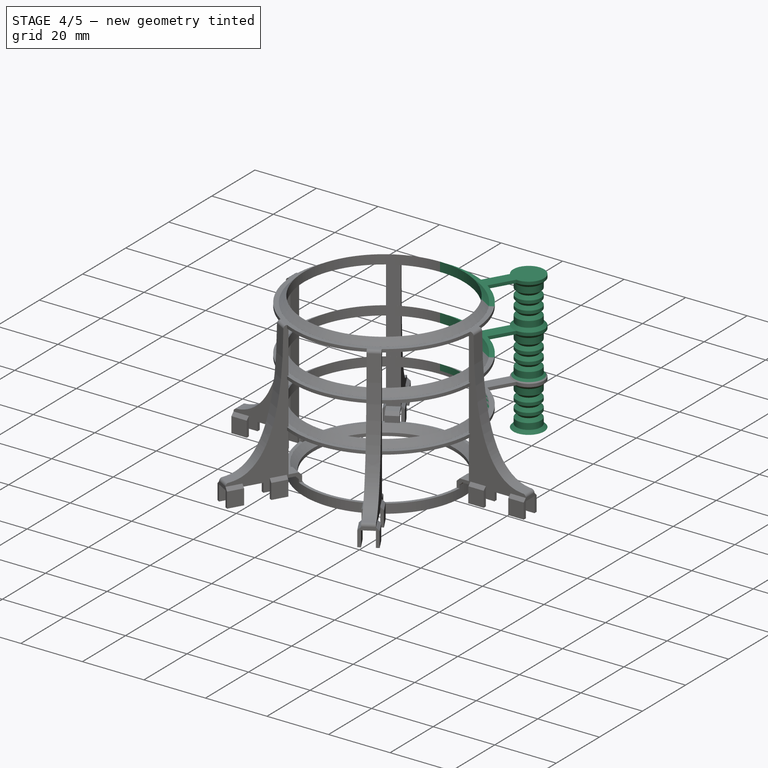
[diagram: stage 4 of 5 — iso view after this stage's code; geometry added in this stage tinted green]
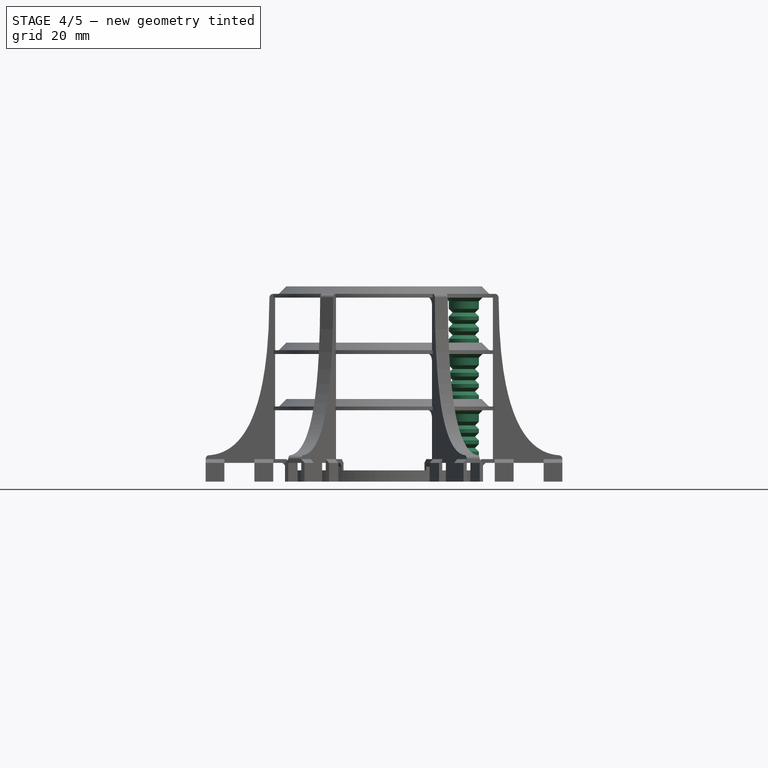
[diagram: stage 4 of 5 — front view after this stage's code; geometry added in this stage tinted green]
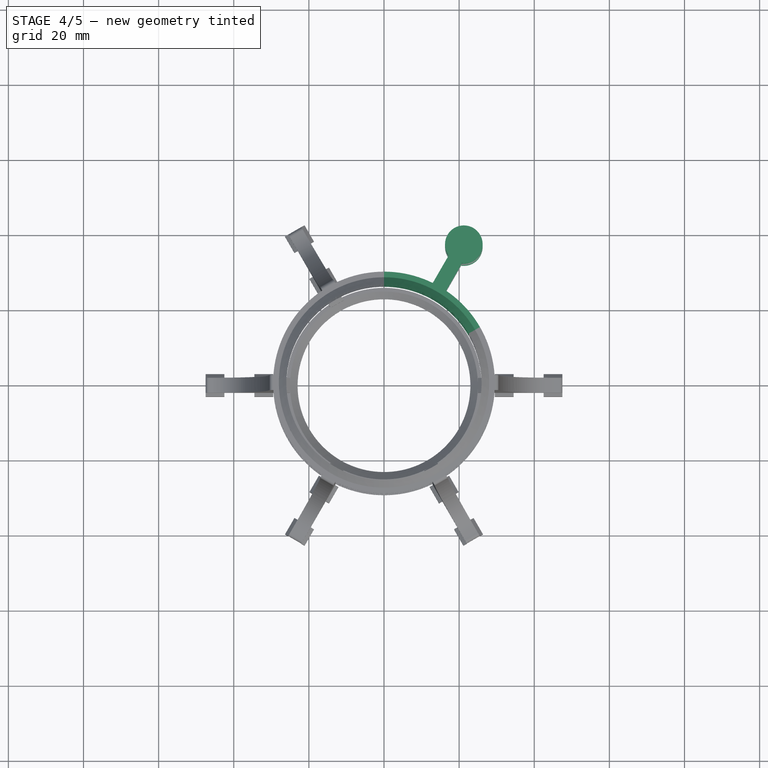
[diagram: stage 4 of 5 — top view after this stage's code; geometry added in this stage tinted green]
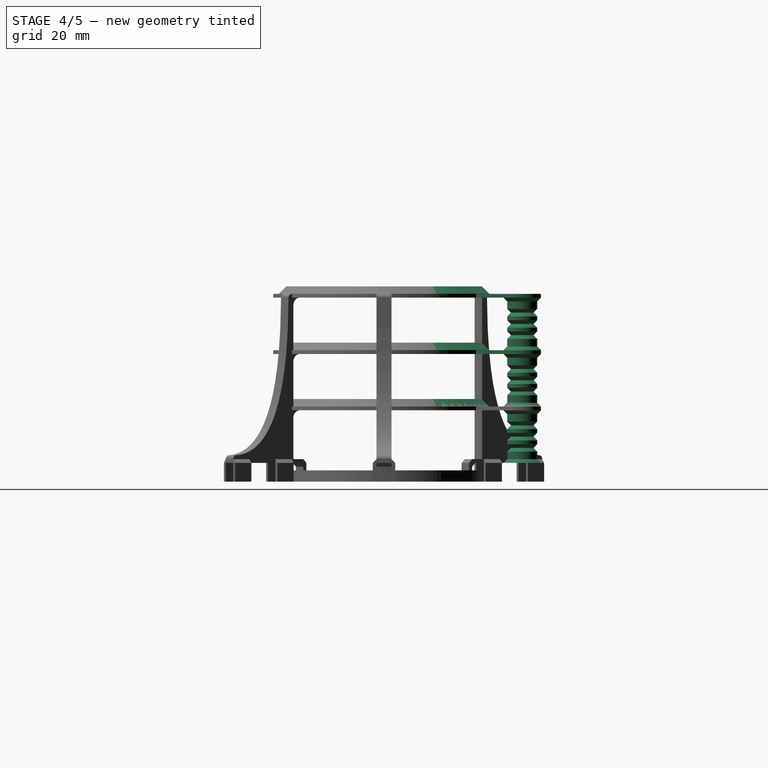
[diagram: stage 4 of 5 — right view after this stage's code; geometry added in this stage tinted green]
FEATURE [PartDesign::Pad] Pad016
  BaseFeature = -> Pad015
  Direction = (0,0,1)
  Length = 1
  Length2 = 10
  Profile = -> Sketch024
  ReferenceAxis = -> Sketch024 [N_Axis]
  Type = 0
FEATURE [PartDesign::Pad] Pad017
  BaseFeature = -> Pad016
  Direction = (0,0,1)
  Length = 1
  Length2 = 10
  Profile = -> Sketch025
  ReferenceAxis = -> Sketch025 [N_Axis]
  Type = 0
FEATURE [Sketcher::SketchObject] Sketch020
  FullyConstrained = true
  MapMode = 5
  Placement = pos=(0,0,15) rot=(0,0,1;0rad)
  Support = -> [Pad017]
  sketch-geometry (6):
    g0: ArcOfCircle CenterX=0 CenterY=0 CenterZ=0 NormalX=0 NormalY=0 NormalZ=1 AngleXU=0 Radius=28 StartAngle=0.523599 EndAngle=1.5708
    g1: ArcOfCircle CenterX=0 CenterY=0 CenterZ=0 NormalX=0 NormalY=0 NormalZ=1 AngleXU=0 Radius=26 StartAngle=0.523599 EndAngle=1.5708
    g2: LineSegment StartX=0 StartY=0 StartZ=0 EndX=2.5764e-12 EndY=26 EndZ=0
    g3: LineSegment StartX=0 StartY=0 StartZ=0 EndX=22.5167 EndY=13 EndZ=0
    g4: LineSegment StartX=3.4834e-12 StartY=28 StartZ=0 EndX=2.5764e-12 EndY=26 EndZ=0
    g5: LineSegment StartX=22.5167 StartY=13 StartZ=0 EndX=24.2487 EndY=14 EndZ=0
  constraints (16):
    c: Coincident(g0,g-1)
    c: Coincident(g1,g0)
    c: Diameter(g0) = 56
    c: Diameter(g1) = 52
    c: Coincident(g2,g0)
    c: Coincident(g3,g0)
    c: Coincident(g1,g2)
    c: Coincident(g1,g3)
    c: PointOnObject(g0,g2)
    c: PointOnObject(g0,g3)
    c: Coincident(g4,g0)
    c: Coincident(g4,g1)
    c: Coincident(g0,g5)
    c: Coincident(g1,g5)
    c: Angle(g-1,g2) = 1.5708
    c: Angle(g-1,g3) = 0.523599
FEATURE [PartDesign::Pad] Pad018
  BaseFeature = -> Pad017
  Direction = (0,0,1)
  Length = 2
  Length2 = 10
  Profile = -> Sketch020
  ReferenceAxis = -> Sketch020 [N_Axis]
  Type = 0
FEATURE [Sketcher::SketchObject] Sketch021
  FullyConstrained = true
  MapMode = 5
  Placement = pos=(0,0,30) rot=(0,0,1;0rad)
  Support = -> [Pad018]
  sketch-geometry (6):
    g0: ArcOfCircle CenterX=0 CenterY=0 CenterZ=0 NormalX=0 NormalY=0 NormalZ=1 AngleXU=0 Radius=28 StartAngle=0.523599 EndAngle=1.5708
    g1: ArcOfCircle CenterX=0 CenterY=0 CenterZ=0 NormalX=0 NormalY=0 NormalZ=1 AngleXU=0 Radius=26 StartAngle=0.523599 EndAngle=1.5708
    g2: LineSegment StartX=0 StartY=0 StartZ=0 EndX=2.5764e-12 EndY=26 EndZ=0
    g3: LineSegment StartX=0 StartY=0 StartZ=0 EndX=22.5167 EndY=13 EndZ=0
    g4: LineSegment StartX=3.4834e-12 StartY=28 StartZ=0 EndX=2.5764e-12 EndY=26 EndZ=0
    g5: LineSegment StartX=22.5167 StartY=13 StartZ=0 EndX=24.2487 EndY=14 EndZ=0
  constraints (16):
    c: Coincident(g0,g-1)
    c: Coincident(g1,g0)
    c: Diameter(g0) = 56
    c: Diameter(g1) = 52
    c: Coincident(g2,g0)
    c: Coincident(g3,g0)
    c: Coincident(g1,g2)
    c: Coincident(g1,g3)
    c: PointOnObject(g0,g2)
    c: PointOnObject(g0,g3)
    c: Coincident(g4,g0)
    c: Coincident(g4,g1)
    c: Coincident(g0,g5)
    c: Coincident(g1,g5)
    c: Angle(g-1,g2) = 1.5708
    c: Angle(g-1,g3) = 0.523599
FEATURE [PartDesign::Pad] Pad019
  BaseFeature = -> Pad018
  Direction = (0,0,1)
  Length = 2
  Length2 = 10
  Profile = -> Sketch021
  ReferenceAxis = -> Sketch021 [N_Axis]
  Type = 0
FEATURE [Sketcher::SketchObject] Sketch022
  FullyConstrained = true
  MapMode = 5
  Placement = pos=(0,0,45) rot=(0,0,1;0rad)
  Support = -> [Pad019]
  sketch-geometry (6):
    g0: ArcOfCircle CenterX=0 CenterY=0 CenterZ=0 NormalX=0 NormalY=0 NormalZ=1 AngleXU=0 Radius=28 StartAngle=0.523599 EndAngle=1.5708
    g1: ArcOfCircle CenterX=0 CenterY=0 CenterZ=0 NormalX=0 NormalY=0 NormalZ=1 AngleXU=0 Radius=26 StartAngle=0.523599 EndAngle=1.5708
    g2: LineSegment StartX=0 StartY=0 StartZ=0 EndX=2.5764e-12 EndY=26 EndZ=0
    g3: LineSegment StartX=0 StartY=0 StartZ=0 EndX=22.5167 EndY=13 EndZ=0
    g4: LineSegment StartX=3.4834e-12 StartY=28 StartZ=0 EndX=2.5764e-12 EndY=26 EndZ=0
    g5: LineSegment StartX=22.5167 StartY=13 StartZ=0 EndX=24.2487 EndY=14 EndZ=0
  constraints (16):
    c: Coincident(g0,g-1)
    c: Coincident(g1,g0)
    c: Diameter(g0) = 56
    c: Diameter(g1) = 52
    c: Coincident(g2,g0)
    c: Coincident(g3,g0)
    c: Coincident(g1,g2)
    c: Coincident(g1,g3)
    c: PointOnObject(g0,g2)
    c: PointOnObject(g0,g3)
    c: Coincident(g4,g0)
    c: Coincident(g4,g1)
    c: Coincident(g0,g5)
    c: Coincident(g1,g5)
    c: Angle(g-1,g2) = 1.5708
    c: Angle(g-1,g3) = 0.523599
FEATURE [PartDesign::Pad] Pad020
  BaseFeature = -> Pad019
  Direction = (0,0,1)
  Length = 2
  Length2 = 10
  Profile = -> Sketch022
  ReferenceAxis = -> Sketch022 [N_Axis]
  Type = 0
FEATURE [PartDesign::Chamfer] Chamfer006
  Angle = 45
  Base = -> Pad020 [Edge1061,Edge1025,Edge1223]
  BaseFeature = -> Pad020
  ChamferType = 0
  FlipDirection = false
  Size = 1.98
  Size2 = 1
  SupportTransform = false
  UseAllEdges = false
FEATURE [PartDesign::Revolution] Revolution
  Angle = 360
  Axis = (-8e-16,2.7e-15,-14)
  Base = (21.25,36.8061,14)
  BaseFeature = -> Chamfer006
  Profile = -> Sketch027
  ReferenceAxis = -> Sketch027 [Axis2]
FEATURE [PartDesign::LinearPattern] LinearPattern
  BaseFeature = -> Revolution
  Direction = -> Sketch027 [V_Axis]
  Length = 30
  Occurrences = 3
  Originals = -> [Revolution]
FEATURE [PartDesign::Fillet] Fillet001
  Base = -> LinearPattern [Edge533,Edge549,Edge240]
  BaseFeature = -> LinearPattern
  Radius = 2
  SupportTransform = false
  UseAllEdges = false
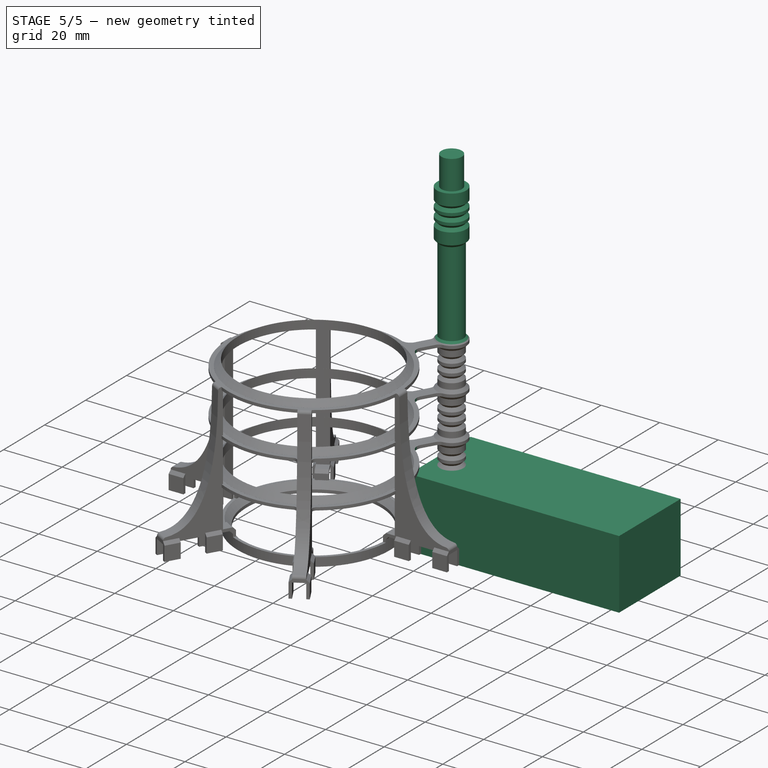
[diagram: stage 5 of 5 — iso view after this stage's code; geometry added in this stage tinted green]
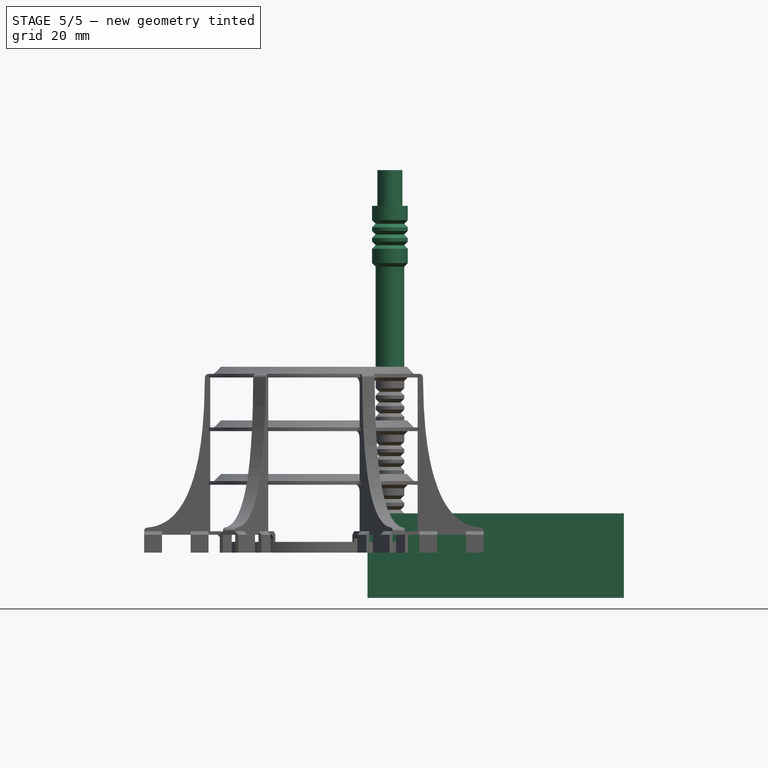
[diagram: stage 5 of 5 — front view after this stage's code; geometry added in this stage tinted green]
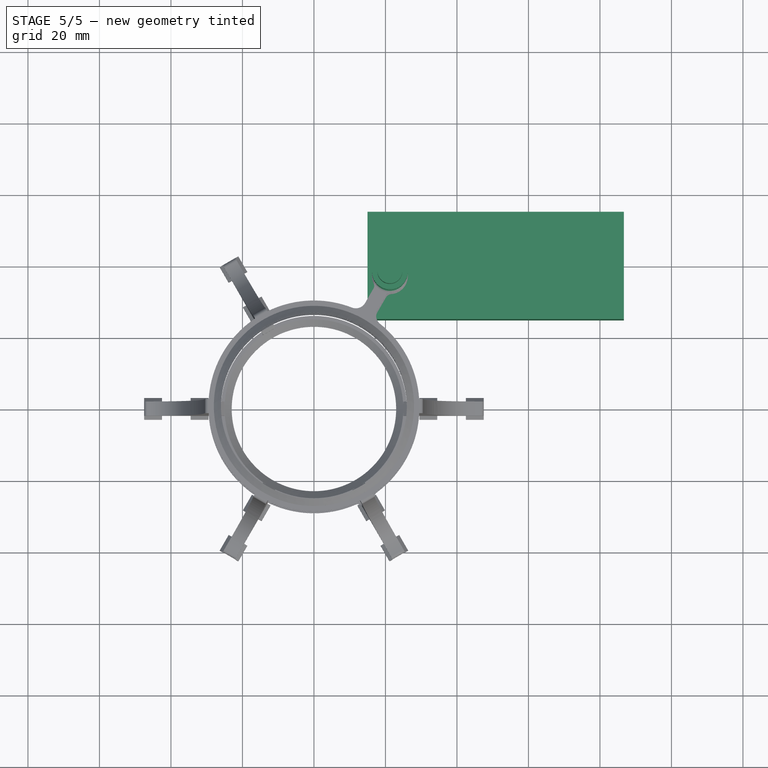
[diagram: stage 5 of 5 — top view after this stage's code; geometry added in this stage tinted green]
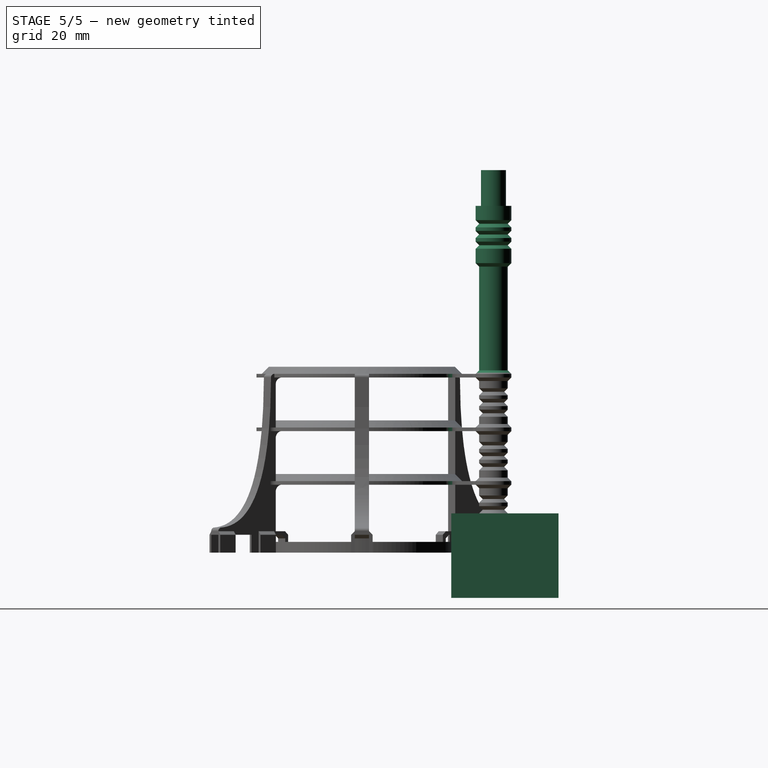
[diagram: stage 5 of 5 — right view after this stage's code; geometry added in this stage tinted green]
FEATURE [Sketcher::SketchObject] Sketch014
  AttachmentOffset = pos=(15,5,-40) rot=(0,0,1;0rad)
  FullyConstrained = false
  MapMode = 5
  Placement = pos=(15,40,5) rot=(1,0,0;1.5708rad)
  Support = -> [XZ_Plane001]
  sketch-geometry (4):
    g0: LineSegment StartX=0 StartY=-22.655 StartZ=0 EndX=71.7013 EndY=-22.655 EndZ=0
    g1: LineSegment StartX=71.7013 StartY=-22.655 StartZ=0 EndX=71.7013 EndY=1 EndZ=0
    g2: LineSegment StartX=71.7013 StartY=1 StartZ=0 EndX=0 EndY=1 EndZ=0
    g3: LineSegment StartX=0 StartY=1 StartZ=0 EndX=0 EndY=-22.655 EndZ=0
  constraints (10):
    c: Coincident(g0,g1)
    c: Coincident(g1,g2)
    c: Coincident(g2,g3)
    c: Coincident(g3,g0)
    c: Horizontal(g0)
    c: Horizontal(g2)
    c: Vertical(g1)
    c: Vertical(g3)
    c: PointOnObject(g0,g-2)
    c: DistanceY(g2) = 1
FEATURE [PartDesign::Pad] Pad012
  Direction = (0,-1,-2e-16)
  Length = 30
  Length2 = 10
  Midplane = true
  Placement = pos=(0,0,0) rot=(1,0,0;1.5708rad)
  Profile = -> Sketch014
  ReferenceAxis = -> Sketch014 [N_Axis]
  Type = 0
FEATURE [PartDesign::Fillet] Fillet002
  Base = -> Fillet001 [Edge117,Edge119,Edge5,Edge17]
  BaseFeature = -> Fillet001
  Radius = 1.5
  SupportTransform = false
  UseAllEdges = false
FEATURE [PartDesign::Pad] Pad022
  BaseFeature = -> Fillet002
  Direction = (-1e-16,2e-16,-1)
  Length = 1
  Length2 = 10
  Profile = -> Sketch028
  ReferenceAxis = -> Sketch028 [N_Axis]
  Type = 0
FEATURE [Sketcher::SketchObject] Sketch029
  FullyConstrained = true
  MapMode = 5
  Placement = pos=(-1e-16,2e-16,-1) rot=(1,0,0;3.14159rad)
  Support = -> [Pad022]
  sketch-geometry (20):
    g0: Circle CenterX=0 CenterY=0 CenterZ=0 NormalX=0 NormalY=0 NormalZ=1 AngleXU=0 Radius=42.5
    g1: LineSegment StartX=0 StartY=0 StartZ=0 EndX=21.25 EndY=-36.8061 EndZ=0
    g2: ArcOfCircle CenterX=21.25 CenterY=-36.8061 CenterZ=0 NormalX=0 NormalY=0 NormalZ=1 AngleXU=0 Radius=6 StartAngle=2.61799 EndAngle=3.66519
    g3: ArcOfCircle CenterX=21.25 CenterY=-36.8061 CenterZ=0 NormalX=0 NormalY=0 NormalZ=1 AngleXU=0 Radius=5 StartAngle=2.61799 EndAngle=3.66519
    g4: LineSegment StartX=21.25 StartY=-36.8061 StartZ=0 EndX=21.25 EndY=-30.8061 EndZ=0
    g5: LineSegment StartX=21.25 StartY=-36.8061 StartZ=0 EndX=26.4462 EndY=-33.8061 EndZ=0
    g6: LineSegment StartX=21.25 StartY=-36.8061 StartZ=0 EndX=26.4462 EndY=-39.8061 EndZ=0
    g7: LineSegment StartX=21.25 StartY=-36.8061 StartZ=0 EndX=21.25 EndY=-42.8061 EndZ=0
    g8: LineSegment StartX=21.25 StartY=-36.8061 StartZ=0 EndX=16.0538 EndY=-33.8061 EndZ=0
    g9: LineSegment StartX=21.25 StartY=-36.8061 StartZ=0 EndX=16.0538 EndY=-39.8061 EndZ=0
    g10: ArcOfCircle CenterX=21.25 CenterY=-36.8061 CenterZ=0 NormalX=0 NormalY=0 NormalZ=1 AngleXU=0 Radius=6 StartAngle=4.71239 EndAngle=5.75959
    g11: ArcOfCircle CenterX=21.25 CenterY=-36.8061 CenterZ=0 NormalX=0 NormalY=0 NormalZ=1 AngleXU=0 Radius=5 StartAngle=4.71239 EndAngle=5.75959
    g12: ArcOfCircle CenterX=21.25 CenterY=-36.8061 CenterZ=0 NormalX=0 NormalY=0 NormalZ=1 AngleXU=0 Radius=5 StartAngle=0.523599 EndAngle=1.5708
    g13: ArcOfCircle CenterX=21.25 CenterY=-36.8061 CenterZ=0 NormalX=0 NormalY=0 NormalZ=1 AngleXU=0 Radius=6 StartAngle=0.523599 EndAngle=1.5708
    g14: LineSegment StartX=25.5801 StartY=-34.3061 StartZ=0 EndX=26.4462 EndY=-33.8061 EndZ=0
    g15: LineSegment StartX=21.25 StartY=-30.8061 StartZ=0 EndX=21.25 EndY=-31.8061 EndZ=0
    g16: LineSegment StartX=16.9199 StartY=-34.3061 StartZ=0 EndX=16.0538 EndY=-33.8061 EndZ=0
    g17: LineSegment StartX=16.0538 StartY=-39.8061 StartZ=0 EndX=16.9199 EndY=-39.3061 EndZ=0
    g18: LineSegment StartX=21.25 StartY=-42.8061 StartZ=0 EndX=21.25 EndY=-41.8061 EndZ=0
    g19: LineSegment StartX=26.4462 StartY=-39.8061 StartZ=0 EndX=25.5801 EndY=-39.3061 EndZ=0
  constraints (55):
    c: Coincident(g0,g-1)
    c: Diameter(g0) = 85
    c: Coincident(g1,g0)
    c: Angle(g1,g-1) = 1.0472
    c: Coincident(g2,g1)
    c: Diameter(g2) = 12
    c: Diameter(g3) = 10
    c: Coincident(g3,g2)
    c: Coincident(g4,g2)
    c: Coincident(g5,g2)
    c: PointOnObject(g5,g2)
    c: Coincident(g6,g2)
    c: PointOnObject(g6,g2)
    c: Coincident(g2,g7)
    c: Coincident(g8,g2)
    c: Coincident(g9,g2)
    c: Angle(g-1,g5) = 0.523599
    c: Angle(g5,g4) = 1.0472
    c: Angle(g6,g5) = 1.0472
    c: PointOnObject(g2,g0)
    c: Angle(g7,g6) = 1.0472
    c: Angle(g9,g7) = 1.0472
    c: Angle(g8,g9) = 1.0472
    c: Coincident(g13,g4)
    c: PointOnObject(g12,g4)
    c: PointOnObject(g3,g8)
    c: Coincident(g2,g8)
    c: Equal(g2,g10)
    c: Coincident(g2,g9)
    c: Coincident(g10,g7)
    c: Coincident(g2,g10)
    c: Equal(g3,g11)
    c: PointOnObject(g3,g9)
    c: PointOnObject(g11,g7)
    c: Coincident(g3,g11)
    c: Equal(g11,g12)
    c: PointOnObject(g11,g6)
    c: PointOnObject(g12,g5)
    c: Coincident(g11,g12)
    c: Equal(g10,g13)
    c: PointOnObject(g10,g6)
    c: PointOnObject(g13,g5)
    c: Coincident(g10,g13)
    c: Coincident(g16,g3)
    c: Coincident(g16,g2)
    c: Coincident(g17,g2)
    c: Coincident(g17,g3)
    c: Coincident(g18,g11)
    c: Coincident(g10,g18)
    c: Coincident(g19,g10)
    c: Coincident(g19,g11)
    c: Coincident(g12,g14)
    c: Coincident(g13,g14)
    c: Coincident(g15,g13)
    c: Coincident(g15,g12)
FEATURE [PartDesign::Pad] Pad023
  BaseFeature = -> Pad022
  Direction = (-1e-16,2e-16,-1)
  Length = 4
  Length2 = 10
  Profile = -> Sketch029
  ReferenceAxis = -> Sketch029 [N_Axis]
  Type = 0
FEATURE [PartDesign::Revolution] Revolution001
  Angle = 360
  Axis = (-2.6e-15,9.1e-15,-47)
  Base = (21.25,36.8061,92)
  BaseFeature = -> Pad023
  Profile = -> Sketch030
  ReferenceAxis = -> Sketch030 [Axis2]
FEATURE [Sketcher::SketchObject] Sketch031
  FullyConstrained = true
  MapMode = 5
  Placement = pos=(5.1e-15,-1.79e-14,92) rot=(0,0,1;0rad)
  Support = -> [Revolution001]
  sketch-geometry (3):
    g0: Circle CenterX=0 CenterY=0 CenterZ=0 NormalX=0 NormalY=0 NormalZ=1 AngleXU=0 Radius=42.5
    g1: LineSegment StartX=0 StartY=0 StartZ=0 EndX=21.25 EndY=36.8061 EndZ=0
    g2: Circle CenterX=21.25 CenterY=36.8061 CenterZ=0 NormalX=0 NormalY=0 NormalZ=1 AngleXU=0 Radius=3.5
  constraints (7):
    c: Coincident(g0,g-1)
    c: Diameter(g0) = 85
    c: Coincident(g1,g0)
    c: PointOnObject(g1,g0)
    c: Angle(g-1,g1) = 1.0472
    c: Coincident(g2,g1)
    c: Diameter(g2) = 7
FEATURE [PartDesign::Pad] Pad024
  BaseFeature = -> Revolution001
  Direction = (1e-16,-2e-16,1)
  Length = 10
  Length2 = 10
  Profile = -> Sketch031
  ReferenceAxis = -> Sketch031 [N_Axis]
  Type = 0
FEATURE [PartDesign::Fillet] Fillet003
  Base = -> Pad024 [Edge743,Edge745,Edge83,Edge859,Edge874,Edge81]
  BaseFeature = -> Pad024
  Radius = 3
  SupportTransform = false
  UseAllEdges = false
FEATURE [PartDesign::Fillet] Fillet004
  Base = -> Fillet003 [Edge986,Edge1000,Edge40,Edge979,Edge991,Edge23]
  BaseFeature = -> Fillet003
  Radius = 2
  SupportTransform = false
  UseAllEdges = false
FEATURE [PartDesign::Body] Body002
  Group = -> [Sketch015,Pad013,Sketch016,Pad014,Chamfer005,Boolean,Sketch020,Sketch021,Sketch022,Sketch023,Sketch024,Sketch025,Pad015,Pad016,Pad017,Pad018,Pad019,Pad020,Chamfer006,Sketch027,Revolution,LinearPattern,Fillet001,Fillet002,Sketch028,Pad022,Sketch029,Pad023,Sketch030,Revolution001,Sketch031,Pad024,Fillet003,Fillet004]
  Origin = -> Origin002
  Tip = -> Fillet004
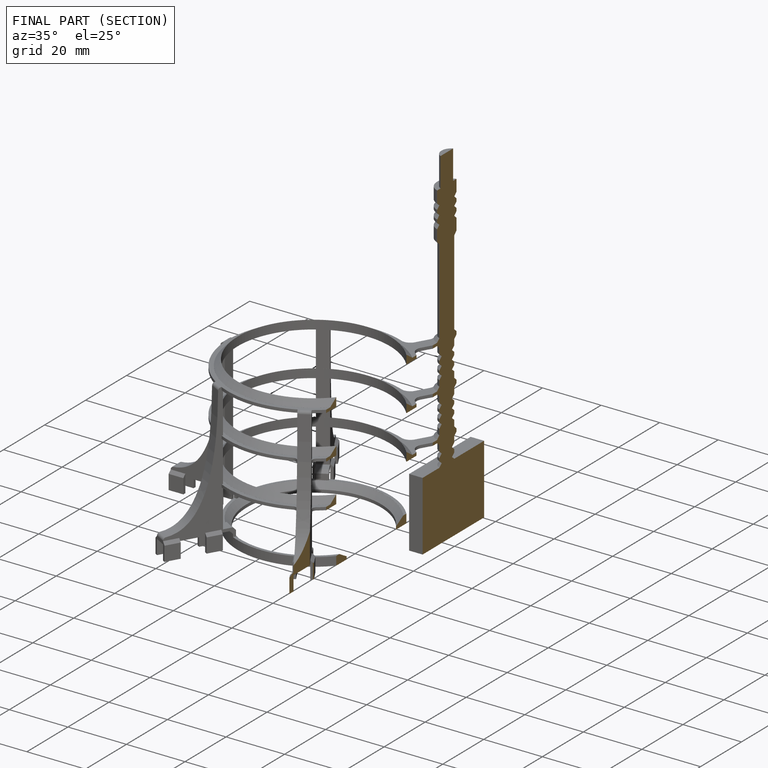
[diagram: finished part — half-section view (interior)]
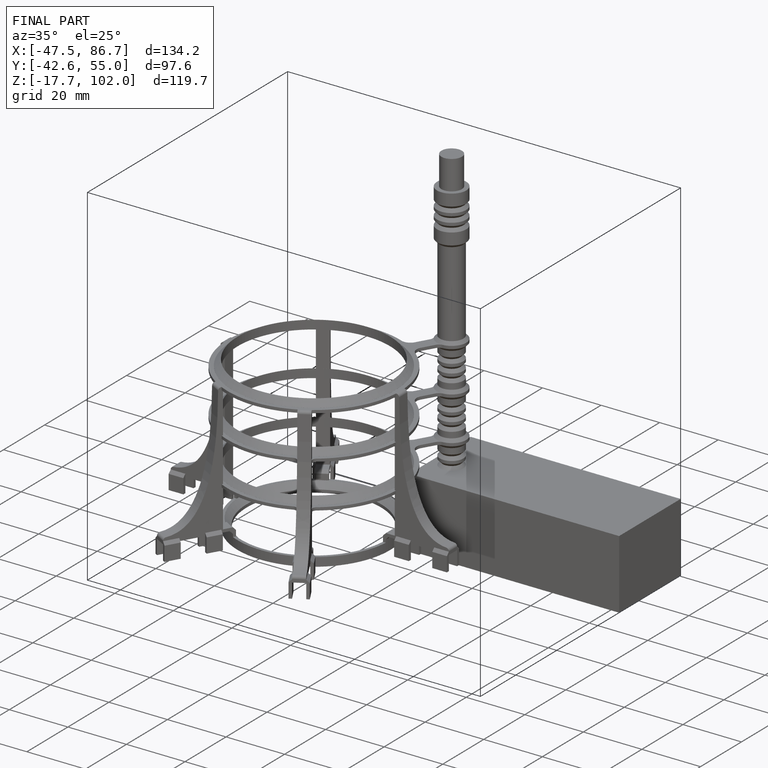
[diagram: finished part — iso view with bounding-box wireframe]
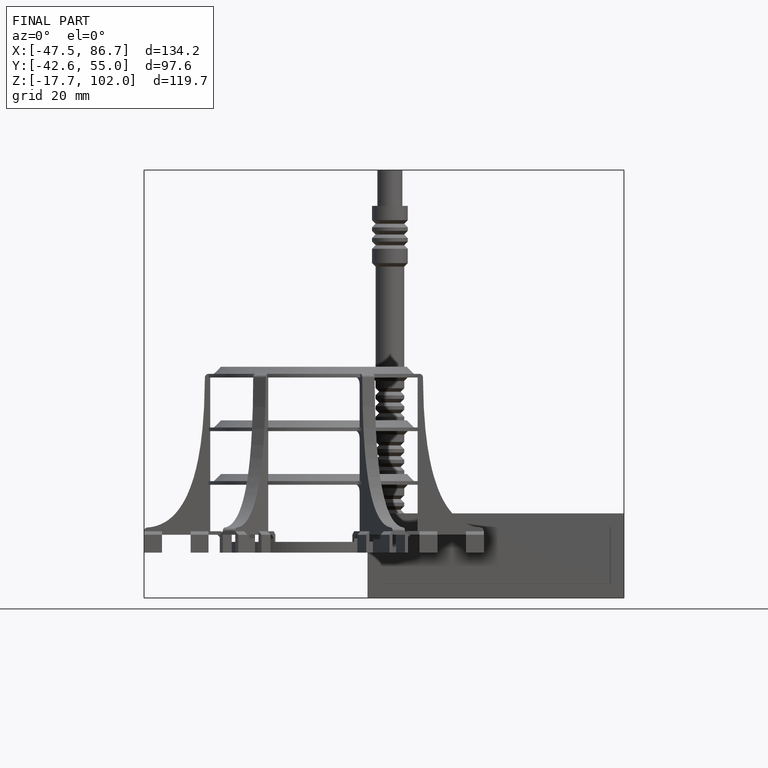
[diagram: finished part — front view with bounding-box wireframe]
